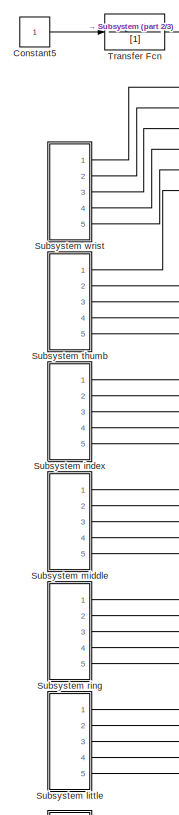
[diagram: root canvas - part 1/3, top left region]
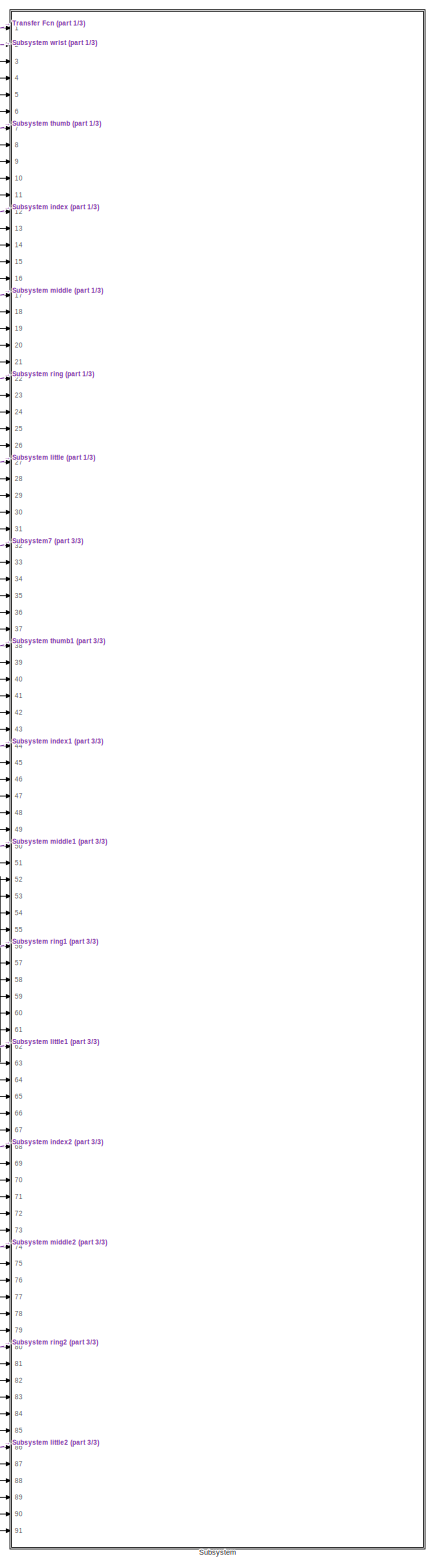
[diagram: root canvas - part 2/3, right side, full height]
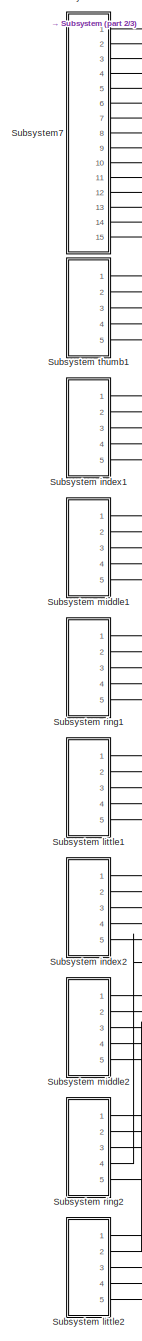
[diagram: root canvas - part 3/3, bottom left region]
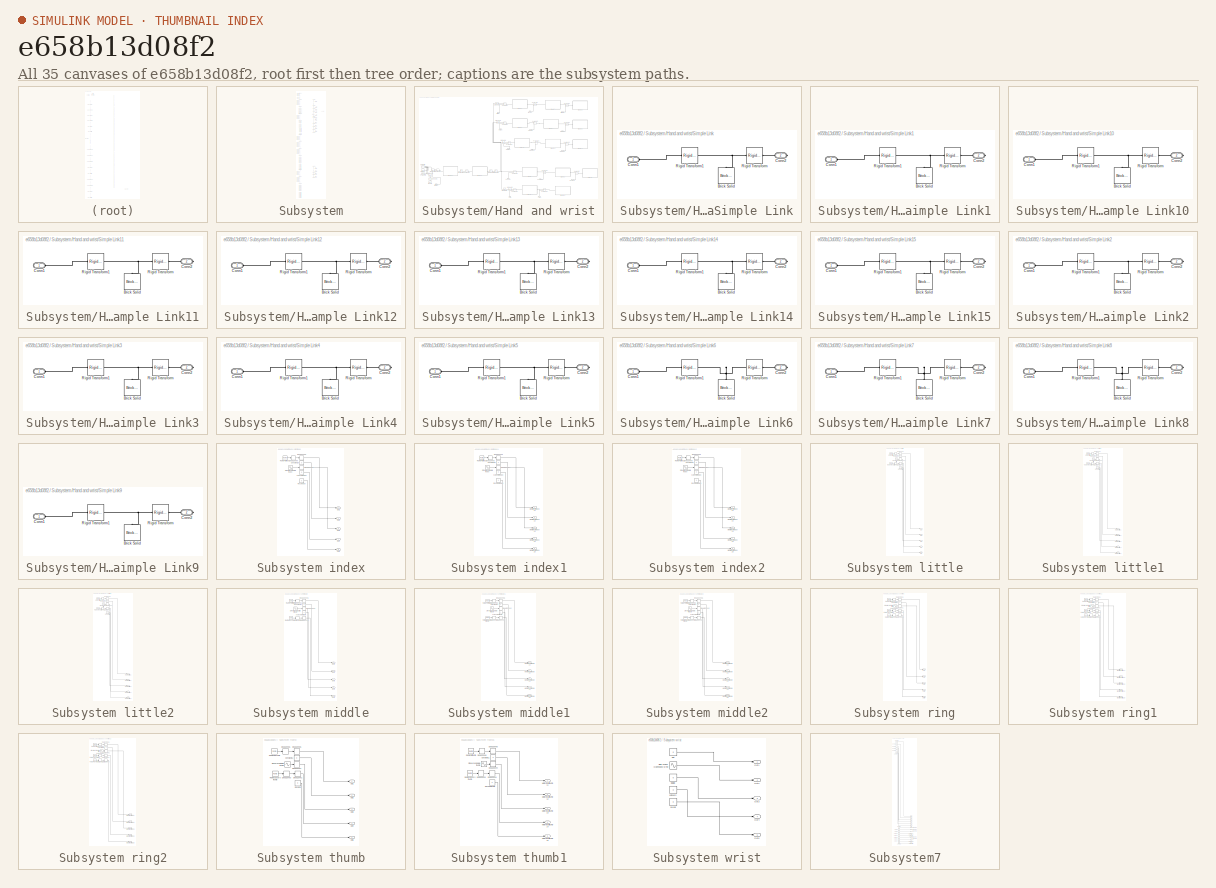
[diagram: thumbnail index - all 35 canvases of the model, root first then tree order]
MODEL slx_e658b13d08f2
KIND model
CONFIG AbsTol = 1e-3
CONFIG EnableMultiTasking = on
CONFIG FixedStep = auto
CONFIG MaxStep = auto
CONFIG MinStep = auto
CONFIG RelTol = 1e-3
CONFIG SampleTimeConstraint = Unconstrained
CONFIG SolverName = VariableStepAuto
CONFIG StartTime = 0.0
CONFIG StopTime = 10.0
BLOCK [Constant] Constant5
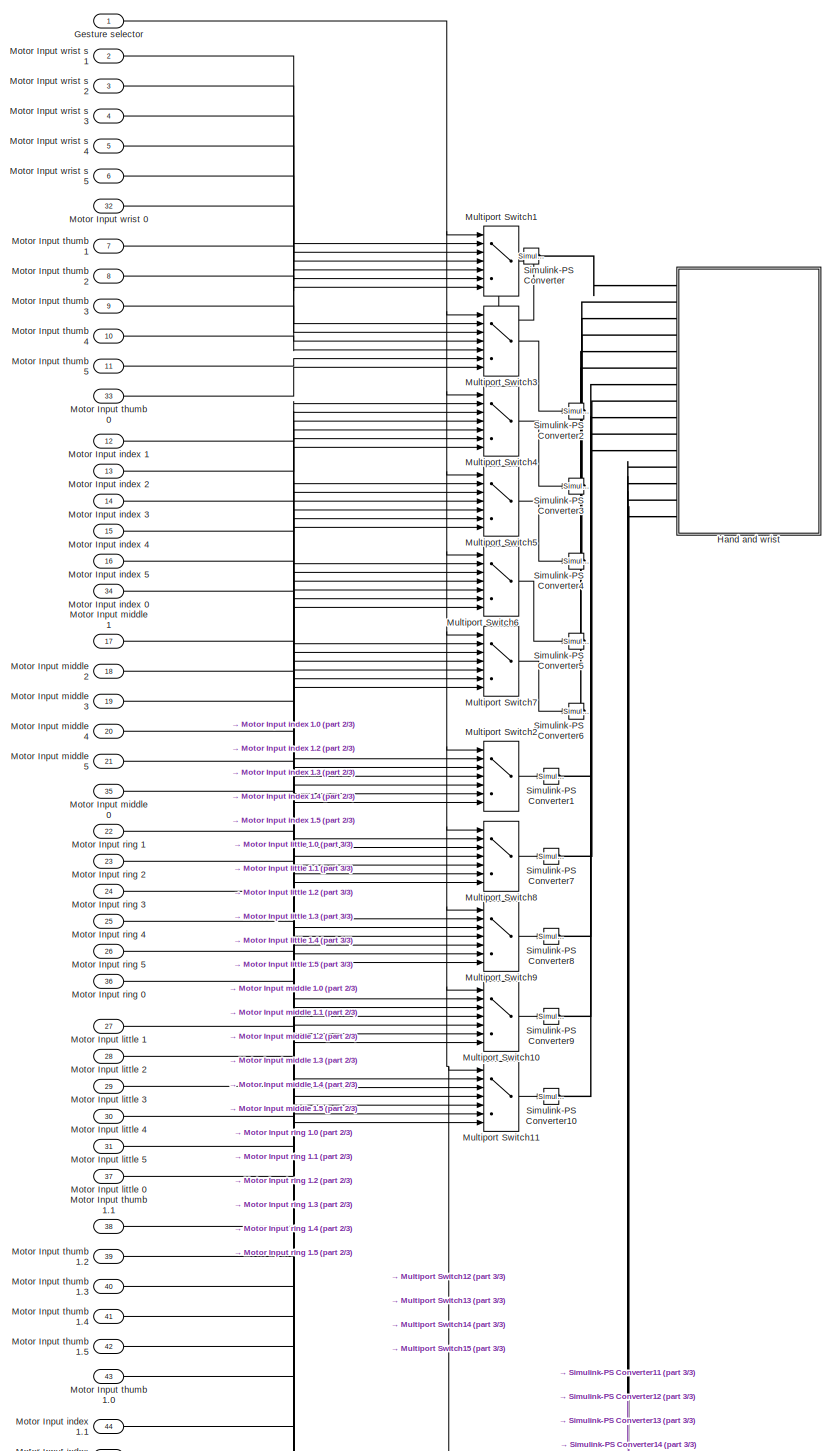
[diagram: Subsystem - part 1/3, full width, top band]
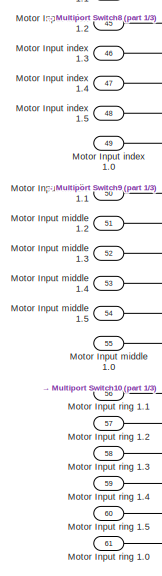
[diagram: Subsystem - part 2/3, middle left region]
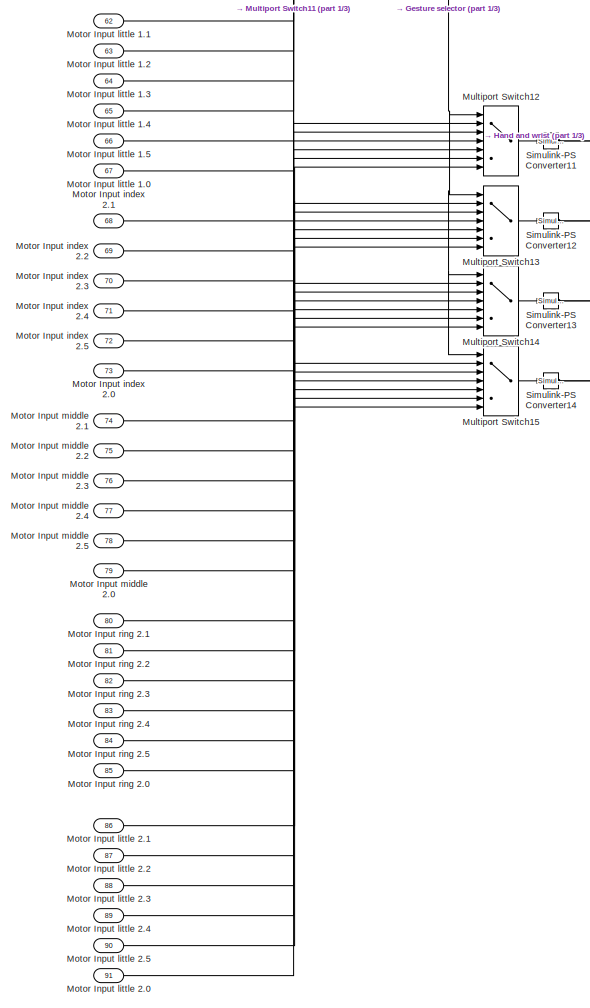
[diagram: Subsystem - part 3/3, bottom center region]
BLOCK [SubSystem] Subsystem
  Ports = [91]
  RequestExecContextInheritance = off
BLOCK [SubSystem] Subsystem index
  Ports = [0, 5]
  RequestExecContextInheritance = off
BLOCK [Constant] Subsystem index/ Rock index
  Value = 0
BLOCK [Constant] Subsystem index/ scissors index
  Value = 0
BLOCK [Constant] Subsystem index/Constant16
  Value = 0
BLOCK [DeadZone] Subsystem index/Dead Zone3
  LowerValue = -10
  UpperValue = 0
BLOCK [DeadZone] Subsystem index/Dead Zone5
  LowerValue = -100
  UpperValue = -1.5
BLOCK [DeadZone] Subsystem index/Dead Zone6
  LowerValue = 1.5
  UpperValue = 100
BLOCK [Outport] Subsystem index/Out1
BLOCK [Outport] Subsystem index/Out2
  Port = 2
BLOCK [Outport] Subsystem index/Out3
  Port = 3
BLOCK [Outport] Subsystem index/Out4
  Port = 4
BLOCK [Outport] Subsystem index/Out5
  Port = 5
BLOCK [Reference] Subsystem index/Ramp Fist index  REF=simulink/Sources/Ramp
  Ports = [0, 1]
  SourceBlock = simulink/Sources/Ramp
  SourceProductBaseCode = SL
  SourceType = Ramp
BLOCK [Sin] Subsystem index/Sine Wave Balala index
  Amplitude = 0.5
  Frequency = 3
  Phase = 3*pi/5
  Ports = [0, 1]
  SampleTime = 0
BLOCK [SubSystem] Subsystem index1
  Ports = [0, 5]
  RequestExecContextInheritance = off
BLOCK [Constant] Subsystem index1/ Rocking index
  Value = 0
BLOCK [Constant] Subsystem index1/ scissors index
  Value = 0
BLOCK [Constant] Subsystem index1/Constant16
  Value = 0
BLOCK [DeadZone] Subsystem index1/Dead Zone3
  LowerValue = -10
  UpperValue = 0
BLOCK [DeadZone] Subsystem index1/Dead Zone5
  LowerValue = -100
  UpperValue = -1.5
BLOCK [DeadZone] Subsystem index1/Dead Zone6
  LowerValue = 1.5
  UpperValue = 100
BLOCK [Outport] Subsystem index1/Motor Input index 1.1
BLOCK [Outport] Subsystem index1/Motor Input index 1.2
  Port = 2
BLOCK [Outport] Subsystem index1/Motor Input index 1.3
  Port = 3
BLOCK [Outport] Subsystem index1/Motor Input index 1.4
  Port = 4
BLOCK [Outport] Subsystem index1/Motor Input index 1.5
  Port = 5
BLOCK [Reference] Subsystem index1/Ramp Fist index  REF=simulink/Sources/Ramp
  Ports = [0, 1]
  SourceBlock = simulink/Sources/Ramp
  SourceProductBaseCode = SL
  SourceType = Ramp
BLOCK [Sin] Subsystem index1/Sine Wave Balala index
  Amplitude = 0.5
  Frequency = 3
  Phase = 3*pi/5
  Ports = [0, 1]
  SampleTime = 0
BLOCK [SubSystem] Subsystem index2
  Ports = [0, 5]
  RequestExecContextInheritance = off
BLOCK [Constant] Subsystem index2/ Rocking index
  Value = 0
BLOCK [Constant] Subsystem index2/ scissors index
  Value = 0
BLOCK [Constant] Subsystem index2/Constant16
  Value = 0
BLOCK [DeadZone] Subsystem index2/Dead Zone3
  LowerValue = -10
  UpperValue = 0
BLOCK [DeadZone] Subsystem index2/Dead Zone5
  LowerValue = -100
  UpperValue = -1.5
BLOCK [DeadZone] Subsystem index2/Dead Zone6
  LowerValue = 1.5
  UpperValue = 100
BLOCK [Outport] Subsystem index2/Motor Input index 2.1
BLOCK [Outport] Subsystem index2/Motor Input index 2.2
  Port = 2
BLOCK [Outport] Subsystem index2/Motor Input index 2.3
  Port = 3
BLOCK [Outport] Subsystem index2/Motor Input index 2.4
  Port = 4
BLOCK [Outport] Subsystem index2/Motor Input index 2.5
  Port = 5
BLOCK [Reference] Subsystem index2/Ramp Fist index  REF=simulink/Sources/Ramp
  Ports = [0, 1]
  SourceBlock = simulink/Sources/Ramp
  SourceProductBaseCode = SL
  SourceType = Ramp
BLOCK [Sin] Subsystem index2/Sine Wave Balala index
  Amplitude = 0.5
  Frequency = 3
  Phase = 3*pi/5
  Ports = [0, 1]
  SampleTime = 0
BLOCK [SubSystem] Subsystem little
  Ports = [0, 5]
  RequestExecContextInheritance = off
BLOCK [Constant] Subsystem little/Constant31
  Value = 0
BLOCK [DeadZone] Subsystem little/Dead Zone2
  LowerValue = -100
  UpperValue = -1.5
BLOCK [DeadZone] Subsystem little/Dead Zone3
  LowerValue = 1.5
  UpperValue = 100
BLOCK [DeadZone] Subsystem little/Dead Zone5
  LowerValue = -100
  UpperValue = -1.5
BLOCK [DeadZone] Subsystem little/Dead Zone6
  LowerValue = 1.5
  UpperValue = 100
BLOCK [DeadZone] Subsystem little/Dead Zone7
  LowerValue = -10
  UpperValue = 0
BLOCK [Outport] Subsystem little/Out1
BLOCK [Outport] Subsystem little/Out2
  Port = 2
BLOCK [Outport] Subsystem little/Out3
  Port = 3
BLOCK [Outport] Subsystem little/Out4
  Port = 4
BLOCK [Outport] Subsystem little/Out5
  Port = 5
BLOCK [Reference] Subsystem little/Ramp Fist little  REF=simulink/Sources/Ramp
  Ports = [0, 1]
  SourceBlock = simulink/Sources/Ramp
  SourceProductBaseCode = SL
  SourceType = Ramp
BLOCK [Reference] Subsystem little/Ramp scissors little  REF=simulink/Sources/Ramp
  Ports = [0, 1]
  SourceBlock = simulink/Sources/Ramp
  SourceProductBaseCode = SL
  SourceType = Ramp
BLOCK [Constant] Subsystem little/Rocking little
  Value = 0
BLOCK [Sin] Subsystem little/Sine Wave Balala little
  Amplitude = 0.5
  Frequency = 3
  Ports = [0, 1]
  SampleTime = 0
BLOCK [SubSystem] Subsystem little1
  Ports = [0, 5]
  RequestExecContextInheritance = off
BLOCK [Constant] Subsystem little1/Constant31
  Value = 0
BLOCK [DeadZone] Subsystem little1/Dead Zone2
  LowerValue = -100
  UpperValue = -1.5
BLOCK [DeadZone] Subsystem little1/Dead Zone3
  LowerValue = 1.5
  UpperValue = 100
BLOCK [DeadZone] Subsystem little1/Dead Zone5
  LowerValue = -100
  UpperValue = -1.5
BLOCK [DeadZone] Subsystem little1/Dead Zone6
  LowerValue = 1.5
  UpperValue = 100
BLOCK [DeadZone] Subsystem little1/Dead Zone7
  LowerValue = -10
  UpperValue = 0
BLOCK [Outport] Subsystem little1/Motor Input little 1.1
BLOCK [Outport] Subsystem little1/Motor Input little 1.2
  Port = 2
BLOCK [Outport] Subsystem little1/Motor Input little 1.3
  Port = 3
BLOCK [Outport] Subsystem little1/Motor Input little 1.4
  Port = 4
BLOCK [Outport] Subsystem little1/Motor Input little 1.5
  Port = 5
BLOCK [Reference] Subsystem little1/Ramp Fist little  REF=simulink/Sources/Ramp
  Ports = [0, 1]
  SourceBlock = simulink/Sources/Ramp
  SourceProductBaseCode = SL
  SourceType = Ramp
BLOCK [Reference] Subsystem little1/Ramp scissors little  REF=simulink/Sources/Ramp
  Ports = [0, 1]
  SourceBlock = simulink/Sources/Ramp
  SourceProductBaseCode = SL
  SourceType = Ramp
BLOCK [Constant] Subsystem little1/Rocking little
  Value = 0
BLOCK [Sin] Subsystem little1/Sine Wave Balala little
  Amplitude = 0.5
  Frequency = 3
  Ports = [0, 1]
  SampleTime = 0
BLOCK [SubSystem] Subsystem little2
  Ports = [0, 5]
  RequestExecContextInheritance = off
BLOCK [Constant] Subsystem little2/Constant31
  Value = 0
BLOCK [DeadZone] Subsystem little2/Dead Zone2
  LowerValue = -100
  UpperValue = -1.5
BLOCK [DeadZone] Subsystem little2/Dead Zone3
  LowerValue = 1.5
  UpperValue = 100
BLOCK [DeadZone] Subsystem little2/Dead Zone5
  LowerValue = -100
  UpperValue = -1.5
BLOCK [DeadZone] Subsystem little2/Dead Zone6
  LowerValue = 1.5
  UpperValue = 100
BLOCK [DeadZone] Subsystem little2/Dead Zone7
  LowerValue = -10
  UpperValue = 0
BLOCK [Outport] Subsystem little2/Motor Input little 2.1
BLOCK [Outport] Subsystem little2/Motor Input little 2.2
  Port = 2
BLOCK [Outport] Subsystem little2/Motor Input little 2.3
  Port = 3
BLOCK [Outport] Subsystem little2/Motor Input little 2.4
  Port = 4
BLOCK [Outport] Subsystem little2/Motor Input little 2.5
  Port = 5
BLOCK [Reference] Subsystem little2/Ramp Fist little  REF=simulink/Sources/Ramp
  Ports = [0, 1]
  SourceBlock = simulink/Sources/Ramp
  SourceProductBaseCode = SL
  SourceType = Ramp
BLOCK [Reference] Subsystem little2/Ramp Scissors little  REF=simulink/Sources/Ramp
  Ports = [0, 1]
  SourceBlock = simulink/Sources/Ramp
  SourceProductBaseCode = SL
  SourceType = Ramp
BLOCK [Constant] Subsystem little2/Rocking little
  Value = 0
BLOCK [Sin] Subsystem little2/Sine Wave Balala little
  Amplitude = 0.5
  Frequency = 3
  Ports = [0, 1]
  SampleTime = 0
BLOCK [SubSystem] Subsystem middle
  Ports = [0, 5]
  RequestExecContextInheritance = off
BLOCK [Constant] Subsystem middle/Constant21
  Value = 0
BLOCK [DeadZone] Subsystem middle/Dead Zone1
  LowerValue = -100
  UpperValue = -1.5
BLOCK [DeadZone] Subsystem middle/Dead Zone2
  LowerValue = -10
  UpperValue = 0
BLOCK [DeadZone] Subsystem middle/Dead Zone3
  LowerValue = 1.5
  UpperValue = 100
BLOCK [DeadZone] Subsystem middle/Dead Zone5
  LowerValue = -100
  UpperValue = -1.5
BLOCK [DeadZone] Subsystem middle/Dead Zone6
  LowerValue = 1.5
  UpperValue = 100
BLOCK [Outport] Subsystem middle/Out1
BLOCK [Outport] Subsystem middle/Out2
  Port = 2
BLOCK [Outport] Subsystem middle/Out3
  Port = 3
BLOCK [Outport] Subsystem middle/Out4
  Port = 4
BLOCK [Outport] Subsystem middle/Out5
  Port = 5
BLOCK [Reference] Subsystem middle/Ramp Fist middle  REF=simulink/Sources/Ramp
  Ports = [0, 1]
  SourceBlock = simulink/Sources/Ramp
  SourceProductBaseCode = SL
  SourceType = Ramp
BLOCK [Reference] Subsystem middle/Ramp Rock middle  REF=simulink/Sources/Ramp
  Ports = [0, 1]
  SourceBlock = simulink/Sources/Ramp
  SourceProductBaseCode = SL
  SourceType = Ramp
BLOCK [Sin] Subsystem middle/Sine Wave Balala middle
  Amplitude = 0.5
  Frequency = 3
  Phase = 2*pi/5
  Ports = [0, 1]
  SampleTime = 0
BLOCK [Constant] Subsystem middle/scissors Middle
  Value = 0
BLOCK [SubSystem] Subsystem middle1
  Ports = [0, 5]
  RequestExecContextInheritance = off
BLOCK [Constant] Subsystem middle1/Constant21
  Value = 0
BLOCK [DeadZone] Subsystem middle1/Dead Zone1
  LowerValue = -100
  UpperValue = -1.5
BLOCK [DeadZone] Subsystem middle1/Dead Zone2
  LowerValue = -10
  UpperValue = 0
BLOCK [DeadZone] Subsystem middle1/Dead Zone3
  LowerValue = 1.5
  UpperValue = 100
BLOCK [DeadZone] Subsystem middle1/Dead Zone5
  LowerValue = -100
  UpperValue = -1.5
BLOCK [DeadZone] Subsystem middle1/Dead Zone6
  LowerValue = 1.5
  UpperValue = 100
BLOCK [Outport] Subsystem middle1/Motor Input middle 1.1
BLOCK [Outport] Subsystem middle1/Motor Input middle 1.2
  Port = 2
BLOCK [Outport] Subsystem middle1/Motor Input middle 1.3
  Port = 3
BLOCK [Outport] Subsystem middle1/Motor Input middle 1.4
  Port = 4
BLOCK [Outport] Subsystem middle1/Motor Input middle 1.5
  Port = 5
BLOCK [Reference] Subsystem middle1/Ramp Fist middle  REF=simulink/Sources/Ramp
  Ports = [0, 1]
  SourceBlock = simulink/Sources/Ramp
  SourceProductBaseCode = SL
  SourceType = Ramp
BLOCK [Reference] Subsystem middle1/Ramp Rocking middle  REF=simulink/Sources/Ramp
  Ports = [0, 1]
  SourceBlock = simulink/Sources/Ramp
  SourceProductBaseCode = SL
  SourceType = Ramp
BLOCK [Sin] Subsystem middle1/Sine Wave Balala middle
  Amplitude = 0.5
  Frequency = 3
  Phase = 2*pi/5
  Ports = [0, 1]
  SampleTime = 0
BLOCK [Constant] Subsystem middle1/scissors Middle
  Value = 0
BLOCK [SubSystem] Subsystem middle2
  Ports = [0, 5]
  RequestExecContextInheritance = off
BLOCK [Constant] Subsystem middle2/Constant21
  Value = 0
BLOCK [DeadZone] Subsystem middle2/Dead Zone1
  LowerValue = -100
  UpperValue = -1.5
BLOCK [DeadZone] Subsystem middle2/Dead Zone2
  LowerValue = -10
  UpperValue = 0
BLOCK [DeadZone] Subsystem middle2/Dead Zone3
  LowerValue = 1.5
  UpperValue = 100
BLOCK [DeadZone] Subsystem middle2/Dead Zone5
  LowerValue = -100
  UpperValue = -1.5
BLOCK [DeadZone] Subsystem middle2/Dead Zone6
  LowerValue = 1.5
  UpperValue = 100
BLOCK [Outport] Subsystem middle2/Motor Input middle 2.1
BLOCK [Outport] Subsystem middle2/Motor Input middle 2.2
  Port = 2
BLOCK [Outport] Subsystem middle2/Motor Input middle 2.3
  Port = 3
BLOCK [Outport] Subsystem middle2/Motor Input middle 2.4
  Port = 4
BLOCK [Outport] Subsystem middle2/Motor Input middle 2.5
  Port = 5
BLOCK [Reference] Subsystem middle2/Ramp Fist middle  REF=simulink/Sources/Ramp
  Ports = [0, 1]
  SourceBlock = simulink/Sources/Ramp
  SourceProductBaseCode = SL
  SourceType = Ramp
BLOCK [Reference] Subsystem middle2/Ramp Rocking middle  REF=simulink/Sources/Ramp
  Ports = [0, 1]
  SourceBlock = simulink/Sources/Ramp
  SourceProductBaseCode = SL
  SourceType = Ramp
BLOCK [Sin] Subsystem middle2/Sine Wave Balala middle
  Amplitude = 0.5
  Frequency = 3
  Phase = 2*pi/5
  Ports = [0, 1]
  SampleTime = 0
BLOCK [Constant] Subsystem middle2/scissors Middle
  Value = 0
BLOCK [SubSystem] Subsystem ring
  Ports = [0, 5]
  RequestExecContextInheritance = off
BLOCK [Constant] Subsystem ring/Constant26
  Value = 0
BLOCK [DeadZone] Subsystem ring/Dead Zone1
  LowerValue = -10
  UpperValue = 0
BLOCK [DeadZone] Subsystem ring/Dead Zone2
  LowerValue = -100
  UpperValue = -1.5
BLOCK [DeadZone] Subsystem ring/Dead Zone3
  LowerValue = -100
  UpperValue = -1.5
BLOCK [DeadZone] Subsystem ring/Dead Zone4
  LowerValue = 1.5
  UpperValue = 100
BLOCK [DeadZone] Subsystem ring/Dead Zone5
  LowerValue = -100
  UpperValue = -1.5
BLOCK [DeadZone] Subsystem ring/Dead Zone6
  LowerValue = 1.5
  UpperValue = 100
BLOCK [DeadZone] Subsystem ring/Dead Zone7
  LowerValue = 1.5
  UpperValue = 100
BLOCK [Outport] Subsystem ring/Out1
BLOCK [Outport] Subsystem ring/Out2
  Port = 2
BLOCK [Outport] Subsystem ring/Out3
  Port = 3
BLOCK [Outport] Subsystem ring/Out4
  Port = 4
BLOCK [Outport] Subsystem ring/Out5
  Port = 5
BLOCK [Reference] Subsystem ring/Ramp Fist ring  REF=simulink/Sources/Ramp
  Ports = [0, 1]
  SourceBlock = simulink/Sources/Ramp
  SourceProductBaseCode = SL
  SourceType = Ramp
BLOCK [Reference] Subsystem ring/Ramp rock ring  REF=simulink/Sources/Ramp
  Ports = [0, 1]
  SourceBlock = simulink/Sources/Ramp
  SourceProductBaseCode = SL
  SourceType = Ramp
BLOCK [Reference] Subsystem ring/Ramp scissors ring  REF=simulink/Sources/Ramp
  Ports = [0, 1]
  SourceBlock = simulink/Sources/Ramp
  SourceProductBaseCode = SL
  SourceType = Ramp
BLOCK [Sin] Subsystem ring/Sine Wave Balala ring
  Amplitude = 0.5
  Frequency = 3
  Phase = pi/5
  Ports = [0, 1]
  SampleTime = 0
BLOCK [SubSystem] Subsystem ring1
  Ports = [0, 5]
  RequestExecContextInheritance = off
BLOCK [Constant] Subsystem ring1/Constant26
  Value = 0
BLOCK [DeadZone] Subsystem ring1/Dead Zone1
  LowerValue = -10
  UpperValue = 0
BLOCK [DeadZone] Subsystem ring1/Dead Zone2
  LowerValue = -100
  UpperValue = -1.5
BLOCK [DeadZone] Subsystem ring1/Dead Zone3
  LowerValue = -100
  UpperValue = -1.5
BLOCK [DeadZone] Subsystem ring1/Dead Zone4
  LowerValue = 1.5
  UpperValue = 100
BLOCK [DeadZone] Subsystem ring1/Dead Zone5
  LowerValue = -100
  UpperValue = -1.5
BLOCK [DeadZone] Subsystem ring1/Dead Zone6
  LowerValue = 1.5
  UpperValue = 100
BLOCK [DeadZone] Subsystem ring1/Dead Zone7
  LowerValue = 1.5
  UpperValue = 100
BLOCK [Outport] Subsystem ring1/Motor Input ring 1.1
BLOCK [Outport] Subsystem ring1/Motor Input ring 1.2
  Port = 2
BLOCK [Outport] Subsystem ring1/Motor Input ring 1.3
  Port = 3
BLOCK [Outport] Subsystem ring1/Motor Input ring 1.4
  Port = 4
BLOCK [Outport] Subsystem ring1/Motor Input ring 1.5
  Port = 5
BLOCK [Reference] Subsystem ring1/Ramp Fist ring  REF=simulink/Sources/Ramp
  Ports = [0, 1]
  SourceBlock = simulink/Sources/Ramp
  SourceProductBaseCode = SL
  SourceType = Ramp
BLOCK [Reference] Subsystem ring1/Ramp Rocking ring  REF=simulink/Sources/Ramp
  Ports = [0, 1]
  SourceBlock = simulink/Sources/Ramp
  SourceProductBaseCode = SL
  SourceType = Ramp
BLOCK [Reference] Subsystem ring1/Ramp scissors ring  REF=simulink/Sources/Ramp
  Ports = [0, 1]
  SourceBlock = simulink/Sources/Ramp
  SourceProductBaseCode = SL
  SourceType = Ramp
BLOCK [Sin] Subsystem ring1/Sine Wave Balala ring
  Amplitude = 0.5
  Frequency = 3
  Phase = pi/5
  Ports = [0, 1]
  SampleTime = 0
BLOCK [SubSystem] Subsystem ring2
  Ports = [0, 5]
  RequestExecContextInheritance = off
BLOCK [Constant] Subsystem ring2/Constant26
  Value = 0
BLOCK [DeadZone] Subsystem ring2/Dead Zone1
  LowerValue = -10
  UpperValue = 0
BLOCK [DeadZone] Subsystem ring2/Dead Zone2
  LowerValue = -100
  UpperValue = -1.5
BLOCK [DeadZone] Subsystem ring2/Dead Zone3
  LowerValue = -100
  UpperValue = -1.5
BLOCK [DeadZone] Subsystem ring2/Dead Zone4
  LowerValue = 1.5
  UpperValue = 100
BLOCK [DeadZone] Subsystem ring2/Dead Zone5
  LowerValue = -100
  UpperValue = -1.5
BLOCK [DeadZone] Subsystem ring2/Dead Zone6
  LowerValue = 1.5
  UpperValue = 100
BLOCK [DeadZone] Subsystem ring2/Dead Zone7
  LowerValue = 1.5
  UpperValue = 100
BLOCK [Outport] Subsystem ring2/Motor Input ring 2.1
BLOCK [Outport] Subsystem ring2/Motor Input ring 2.2
  Port = 2
BLOCK [Outport] Subsystem ring2/Motor Input ring 2.3
  Port = 3
BLOCK [Outport] Subsystem ring2/Motor Input ring 2.4
  Port = 4
BLOCK [Outport] Subsystem ring2/Motor Input ring 2.5
  Port = 5
BLOCK [Reference] Subsystem ring2/Ramp Fist ring  REF=simulink/Sources/Ramp
  Ports = [0, 1]
  SourceBlock = simulink/Sources/Ramp
  SourceProductBaseCode = SL
  SourceType = Ramp
BLOCK [Reference] Subsystem ring2/Ramp Rocking ring  REF=simulink/Sources/Ramp
  Ports = [0, 1]
  SourceBlock = simulink/Sources/Ramp
  SourceProductBaseCode = SL
  SourceType = Ramp
BLOCK [Reference] Subsystem ring2/Ramp scissors ring  REF=simulink/Sources/Ramp
  Ports = [0, 1]
  SourceBlock = simulink/Sources/Ramp
  SourceProductBaseCode = SL
  SourceType = Ramp
BLOCK [Sin] Subsystem ring2/Sine Wave Balala ring
  Amplitude = 0.5
  Frequency = 3
  Phase = pi/5
  Ports = [0, 1]
  SampleTime = 0
BLOCK [SubSystem] Subsystem thumb
  Ports = [0, 5]
  RequestExecContextInheritance = off
BLOCK [Constant] Subsystem thumb/Constant11
  Value = 0
BLOCK [DeadZone] Subsystem thumb/Dead Zone1
  LowerValue = -100
  UpperValue = -1.5
BLOCK [DeadZone] Subsystem thumb/Dead Zone3
  LowerValue = 1.5
  UpperValue = 100
BLOCK [DeadZone] Subsystem thumb/Dead Zone4
  LowerValue = -10
  UpperValue = 0
BLOCK [DeadZone] Subsystem thumb/Dead Zone5
  LowerValue = -100
  UpperValue = -1.5
BLOCK [DeadZone] Subsystem thumb/Dead Zone6
  LowerValue = 1.5
  UpperValue = 100
BLOCK [Outport] Subsystem thumb/Out1
BLOCK [Outport] Subsystem thumb/Out2
  Port = 2
BLOCK [Outport] Subsystem thumb/Out3
  Port = 3
BLOCK [Outport] Subsystem thumb/Out4
  Port = 4
BLOCK [Outport] Subsystem thumb/Out5
  Port = 5
BLOCK [Reference] Subsystem thumb/Ramp Fist Thumb  REF=simulink/Sources/Ramp
  Ports = [0, 1]
  SourceBlock = simulink/Sources/Ramp
  SourceProductBaseCode = SL
  SourceType = Ramp
BLOCK [Reference] Subsystem thumb/Ramp scissors thumb  REF=simulink/Sources/Ramp
  Ports = [0, 1]
  SourceBlock = simulink/Sources/Ramp
  SourceProductBaseCode = SL
  SourceType = Ramp
BLOCK [Constant] Subsystem thumb/Rocking
  Value = 0
BLOCK [Sin] Subsystem thumb/Sine Wave Balala thumb
  Amplitude = 0.5
  Frequency = 3
  Phase = 4*pi/5
  Ports = [0, 1]
  SampleTime = 0
BLOCK [SubSystem] Subsystem thumb1
  Ports = [0, 5]
  RequestExecContextInheritance = off
BLOCK [Constant] Subsystem thumb1/Constant11
  Value = 0
BLOCK [DeadZone] Subsystem thumb1/Dead Zone1
  LowerValue = -100
  UpperValue = -1.5
BLOCK [DeadZone] Subsystem thumb1/Dead Zone3
  LowerValue = 1.5
  UpperValue = 100
BLOCK [DeadZone] Subsystem thumb1/Dead Zone4
  LowerValue = -10
  UpperValue = 0
BLOCK [DeadZone] Subsystem thumb1/Dead Zone5
  LowerValue = -100
  UpperValue = -1.5
BLOCK [DeadZone] Subsystem thumb1/Dead Zone6
  LowerValue = 1.5
  UpperValue = 100
BLOCK [Outport] Subsystem thumb1/Motor Input thumb 1.1
BLOCK [Outport] Subsystem thumb1/Motor Input thumb 1.2
  Port = 2
BLOCK [Outport] Subsystem thumb1/Motor Input thumb 1.3
  Port = 3
BLOCK [Outport] Subsystem thumb1/Motor Input thumb 1.4
  Port = 4
BLOCK [Outport] Subsystem thumb1/Motor Input thumb 1.5
  Port = 5
BLOCK [Reference] Subsystem thumb1/Ramp Fist thumb  REF=simulink/Sources/Ramp
  Ports = [0, 1]
  SourceBlock = simulink/Sources/Ramp
  SourceProductBaseCode = SL
  SourceType = Ramp
BLOCK [Reference] Subsystem thumb1/Ramp scissors thumb  REF=simulink/Sources/Ramp
  Ports = [0, 1]
  SourceBlock = simulink/Sources/Ramp
  SourceProductBaseCode = SL
  SourceType = Ramp
BLOCK [Constant] Subsystem thumb1/Rocking thumb
  Value = 0
BLOCK [Sin] Subsystem thumb1/Sine Wave Balala thumb
  Amplitude = 0.5
  Frequency = 3
  Phase = 4*pi/5
  Ports = [0, 1]
  SampleTime = 0
BLOCK [SubSystem] Subsystem wrist
  Ports = [0, 5]
  RequestExecContextInheritance = off
BLOCK [Constant] Subsystem wrist/Balala
  Value = 0
BLOCK [Constant] Subsystem wrist/Fist
  Value = 0
BLOCK [Outport] Subsystem wrist/Out1
BLOCK [Outport] Subsystem wrist/Out2
  Port = 2
BLOCK [Outport] Subsystem wrist/Out3
  Port = 3
BLOCK [Outport] Subsystem wrist/Out4
  Port = 4
BLOCK [Outport] Subsystem wrist/Out5
  Port = 5
BLOCK [Sin] Subsystem wrist/Sine Wave Openhand wrist
  Amplitude = 0.5
  Frequency = 3
  Ports = [0, 1]
  SampleTime = 0
BLOCK [Constant] Subsystem wrist/scissors
  Value = 0
BLOCK [Constant] Subsystem wrist/swear
  Value = 0
BLOCK [Inport] Subsystem/Gesture selector
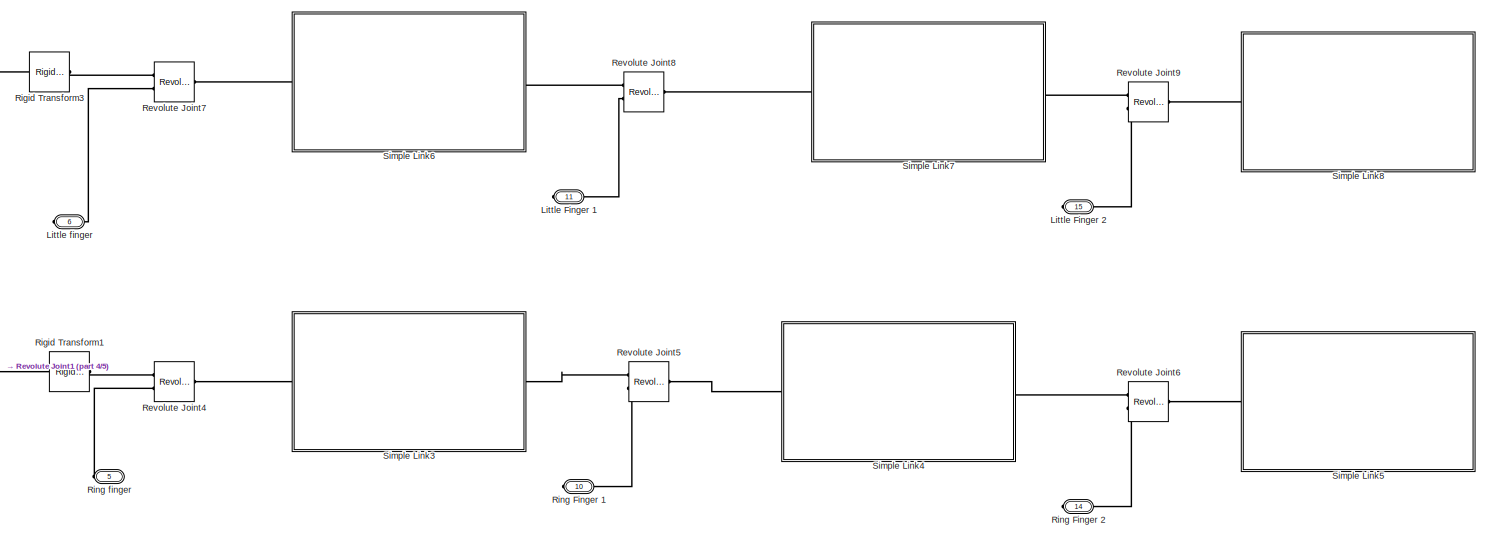
[diagram: Subsystem/Hand and wrist - part 1/5, top right region]
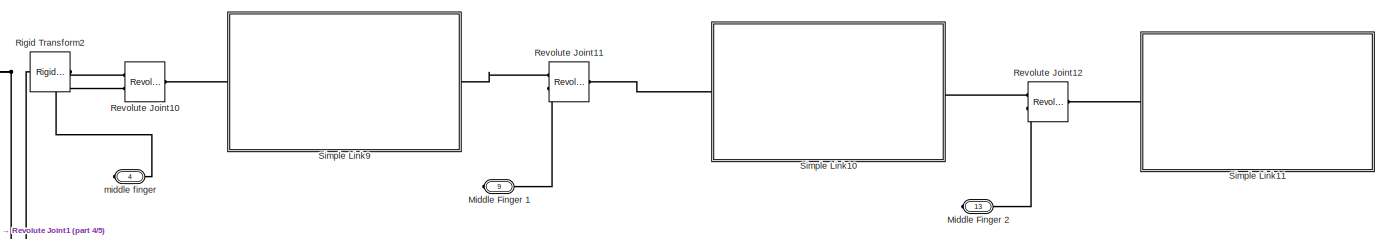
[diagram: Subsystem/Hand and wrist - part 2/5, middle right region]
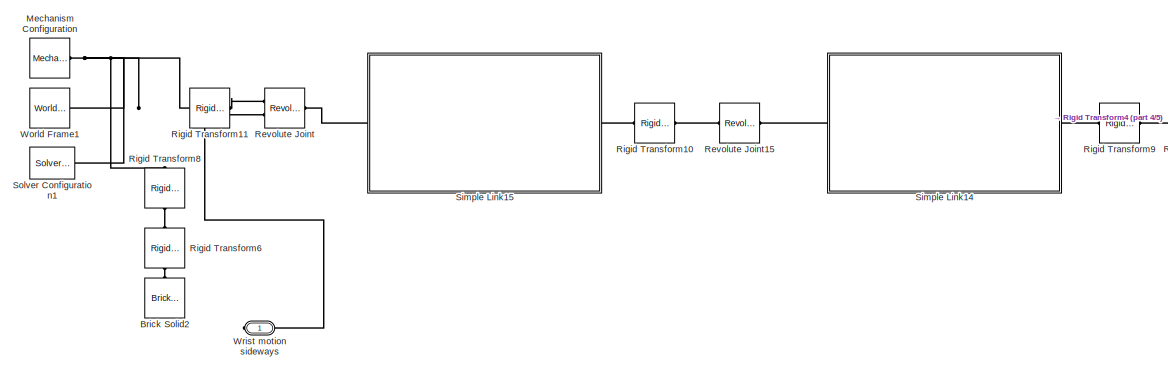
[diagram: Subsystem/Hand and wrist - part 3/5, bottom left region]
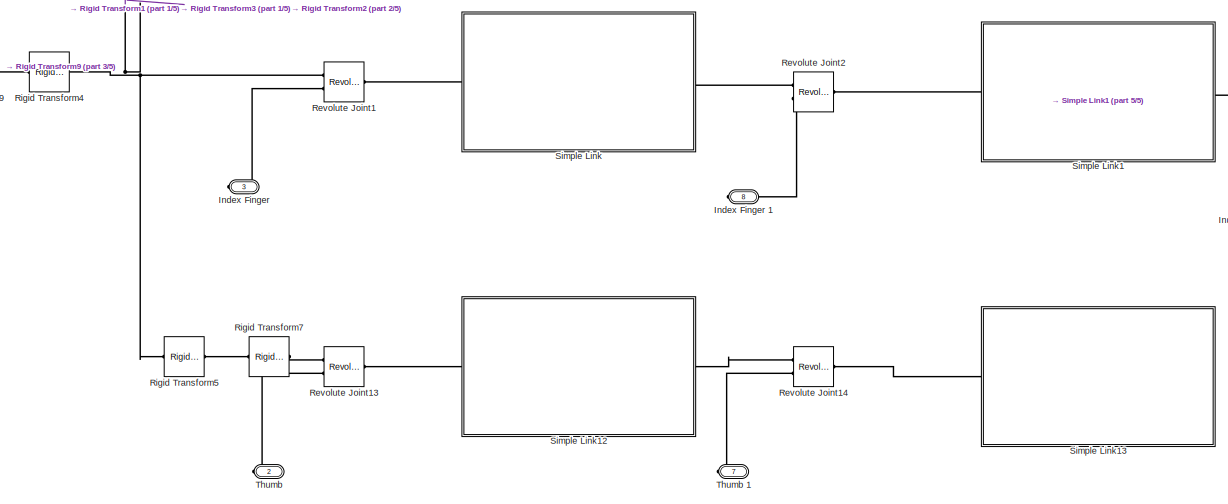
[diagram: Subsystem/Hand and wrist - part 4/5, bottom center region]
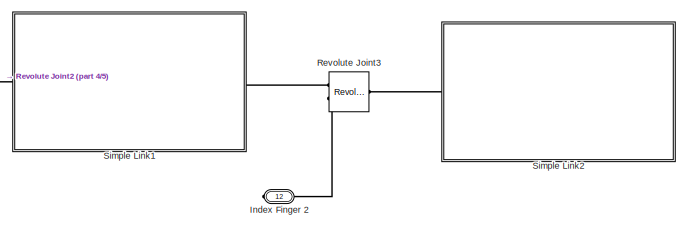
[diagram: Subsystem/Hand and wrist - part 5/5, bottom right region]
BLOCK [SubSystem] Subsystem/Hand and wrist
  NameLocation = top
  Ports = [0, 0, 0, 0, 0, 0, 15]
  RequestExecContextInheritance = off
BLOCK [Reference] Subsystem/Hand and wrist/Brick Solid2  REF=sm_lib/Body Elements/Brick Solid
  NameLocation = right
  Ports = [0, 0, 0, 0, 0, 0, 1]
  SourceBlock = sm_lib/Body Elements/Brick Solid
  SourceProductBaseCode = MS
  SourceType = Brick Solid
BLOCK [PMIOPort] Subsystem/Hand and wrist/Index Finger
  NameLocation = top
  Port = 3
  Side = Right
BLOCK [PMIOPort] Subsystem/Hand and wrist/Index Finger 1
  NameLocation = top
  Port = 8
  Side = Right
BLOCK [PMIOPort] Subsystem/Hand and wrist/Index Finger 2
  NameLocation = top
  Port = 12
  Side = Right
BLOCK [PMIOPort] Subsystem/Hand and wrist/Little Finger 1
  NameLocation = top
  Port = 11
  Side = Right
BLOCK [PMIOPort] Subsystem/Hand and wrist/Little Finger 2
  NameLocation = top
  Port = 15
  Side = Right
BLOCK [PMIOPort] Subsystem/Hand and wrist/Little finger
  NameLocation = top
  Port = 6
  Side = Right
BLOCK [Reference] Subsystem/Hand and wrist/Mechanism Configuration  REF=sm_lib/Utilities/Mechanism
Configuration
  Ports = [0, 0, 0, 0, 0, 0, 1]
  SourceBlock = sm_lib/Utilities/Mechanism\nConfiguration
  SourceProductBaseCode = MS
  SourceType = Mechanism\nConfiguration
BLOCK [PMIOPort] Subsystem/Hand and wrist/Middle Finger 1
  NameLocation = top
  Port = 9
  Side = Right
BLOCK [PMIOPort] Subsystem/Hand and wrist/Middle Finger 2
  NameLocation = top
  Port = 13
  Side = Right
BLOCK [Reference] Subsystem/Hand and wrist/Revolute Joint  REF=sm_lib/Joints/Revolute Joint
  Ports = [0, 0, 0, 0, 0, 2, 1]
  SourceBlock = sm_lib/Joints/Revolute Joint
  SourceProductBaseCode = MS
  SourceType = Revolute Joint
BLOCK [Reference] Subsystem/Hand and wrist/Revolute Joint1  REF=sm_lib/Joints/Revolute Joint
  Ports = [0, 0, 0, 0, 0, 2, 1]
  SourceBlock = sm_lib/Joints/Revolute Joint
  SourceProductBaseCode = MS
  SourceType = Revolute Joint
BLOCK [Reference] Subsystem/Hand and wrist/Revolute Joint10  REF=sm_lib/Joints/Revolute Joint
  Ports = [0, 0, 0, 0, 0, 2, 1]
  SourceBlock = sm_lib/Joints/Revolute Joint
  SourceProductBaseCode = MS
  SourceType = Revolute Joint
BLOCK [Reference] Subsystem/Hand and wrist/Revolute Joint11  REF=sm_lib/Joints/Revolute Joint
  Ports = [0, 0, 0, 0, 0, 2, 1]
  SourceBlock = sm_lib/Joints/Revolute Joint
  SourceProductBaseCode = MS
  SourceType = Revolute Joint
BLOCK [Reference] Subsystem/Hand and wrist/Revolute Joint12  REF=sm_lib/Joints/Revolute Joint
  Ports = [0, 0, 0, 0, 0, 2, 1]
  SourceBlock = sm_lib/Joints/Revolute Joint
  SourceProductBaseCode = MS
  SourceType = Revolute Joint
BLOCK [Reference] Subsystem/Hand and wrist/Revolute Joint13  REF=sm_lib/Joints/Revolute Joint
  Ports = [0, 0, 0, 0, 0, 2, 1]
  SourceBlock = sm_lib/Joints/Revolute Joint
  SourceProductBaseCode = MS
  SourceType = Revolute Joint
BLOCK [Reference] Subsystem/Hand and wrist/Revolute Joint14  REF=sm_lib/Joints/Revolute Joint
  Ports = [0, 0, 0, 0, 0, 2, 1]
  SourceBlock = sm_lib/Joints/Revolute Joint
  SourceProductBaseCode = MS
  SourceType = Revolute Joint
BLOCK [Reference] Subsystem/Hand and wrist/Revolute Joint15  REF=sm_lib/Joints/Revolute Joint
  Ports = [0, 0, 0, 0, 0, 1, 1]
  SourceBlock = sm_lib/Joints/Revolute Joint
  SourceProductBaseCode = MS
  SourceType = Revolute Joint
BLOCK [Reference] Subsystem/Hand and wrist/Revolute Joint2  REF=sm_lib/Joints/Revolute Joint
  Ports = [0, 0, 0, 0, 0, 2, 1]
  SourceBlock = sm_lib/Joints/Revolute Joint
  SourceProductBaseCode = MS
  SourceType = Revolute Joint
BLOCK [Reference] Subsystem/Hand and wrist/Revolute Joint3  REF=sm_lib/Joints/Revolute Joint
  Ports = [0, 0, 0, 0, 0, 2, 1]
  SourceBlock = sm_lib/Joints/Revolute Joint
  SourceProductBaseCode = MS
  SourceType = Revolute Joint
BLOCK [Reference] Subsystem/Hand and wrist/Revolute Joint4  REF=sm_lib/Joints/Revolute Joint
  Ports = [0, 0, 0, 0, 0, 2, 1]
  SourceBlock = sm_lib/Joints/Revolute Joint
  SourceProductBaseCode = MS
  SourceType = Revolute Joint
BLOCK [Reference] Subsystem/Hand and wrist/Revolute Joint5  REF=sm_lib/Joints/Revolute Joint
  Ports = [0, 0, 0, 0, 0, 2, 1]
  SourceBlock = sm_lib/Joints/Revolute Joint
  SourceProductBaseCode = MS
  SourceType = Revolute Joint
BLOCK [Reference] Subsystem/Hand and wrist/Revolute Joint6  REF=sm_lib/Joints/Revolute Joint
  Ports = [0, 0, 0, 0, 0, 2, 1]
  SourceBlock = sm_lib/Joints/Revolute Joint
  SourceProductBaseCode = MS
  SourceType = Revolute Joint
BLOCK [Reference] Subsystem/Hand and wrist/Revolute Joint7  REF=sm_lib/Joints/Revolute Joint
  Ports = [0, 0, 0, 0, 0, 2, 1]
  SourceBlock = sm_lib/Joints/Revolute Joint
  SourceProductBaseCode = MS
  SourceType = Revolute Joint
BLOCK [Reference] Subsystem/Hand and wrist/Revolute Joint8  REF=sm_lib/Joints/Revolute Joint
  Ports = [0, 0, 0, 0, 0, 2, 1]
  SourceBlock = sm_lib/Joints/Revolute Joint
  SourceProductBaseCode = MS
  SourceType = Revolute Joint
BLOCK [Reference] Subsystem/Hand and wrist/Revolute Joint9  REF=sm_lib/Joints/Revolute Joint
  Ports = [0, 0, 0, 0, 0, 2, 1]
  SourceBlock = sm_lib/Joints/Revolute Joint
  SourceProductBaseCode = MS
  SourceType = Revolute Joint
BLOCK [Reference] Subsystem/Hand and wrist/Rigid Transform1  REF=sm_lib/Frames and
Transforms/Rigid
Transform
  Ports = [0, 0, 0, 0, 0, 1, 1]
  SourceBlock = sm_lib/Frames and\nTransforms/Rigid\nTransform
  SourceProductBaseCode = MS
  SourceType = Rigid\nTransform
BLOCK [Reference] Subsystem/Hand and wrist/Rigid Transform10  REF=sm_lib/Frames and
Transforms/Rigid
Transform
  NameLocation = top
  Ports = [0, 0, 0, 0, 0, 1, 1]
  SourceBlock = sm_lib/Frames and\nTransforms/Rigid\nTransform
  SourceProductBaseCode = MS
  SourceType = Rigid\nTransform
BLOCK [Reference] Subsystem/Hand and wrist/Rigid Transform11  REF=sm_lib/Frames and
Transforms/Rigid
Transform
  NameLocation = top
  Ports = [0, 0, 0, 0, 0, 1, 1]
  SourceBlock = sm_lib/Frames and\nTransforms/Rigid\nTransform
  SourceProductBaseCode = MS
  SourceType = Rigid\nTransform
BLOCK [Reference] Subsystem/Hand and wrist/Rigid Transform2  REF=sm_lib/Frames and
Transforms/Rigid
Transform
  Ports = [0, 0, 0, 0, 0, 1, 1]
  SourceBlock = sm_lib/Frames and\nTransforms/Rigid\nTransform
  SourceProductBaseCode = MS
  SourceType = Rigid\nTransform
BLOCK [Reference] Subsystem/Hand and wrist/Rigid Transform3  REF=sm_lib/Frames and
Transforms/Rigid
Transform
  Ports = [0, 0, 0, 0, 0, 1, 1]
  SourceBlock = sm_lib/Frames and\nTransforms/Rigid\nTransform
  SourceProductBaseCode = MS
  SourceType = Rigid\nTransform
BLOCK [Reference] Subsystem/Hand and wrist/Rigid Transform4  REF=sm_lib/Frames and
Transforms/Rigid
Transform
  NameLocation = top
  Ports = [0, 0, 0, 0, 0, 1, 1]
  SourceBlock = sm_lib/Frames and\nTransforms/Rigid\nTransform
  SourceProductBaseCode = MS
  SourceType = Rigid\nTransform
BLOCK [Reference] Subsystem/Hand and wrist/Rigid Transform5  REF=sm_lib/Frames and
Transforms/Rigid
Transform
  NameLocation = top
  Ports = [0, 0, 0, 0, 0, 1, 1]
  SourceBlock = sm_lib/Frames and\nTransforms/Rigid\nTransform
  SourceProductBaseCode = MS
  SourceType = Rigid\nTransform
BLOCK [Reference] Subsystem/Hand and wrist/Rigid Transform6  REF=sm_lib/Frames and
Transforms/Rigid
Transform
  NameLocation = left
  Ports = [0, 0, 0, 0, 0, 1, 1]
  SourceBlock = sm_lib/Frames and\nTransforms/Rigid\nTransform
  SourceProductBaseCode = MS
  SourceType = Rigid\nTransform
BLOCK [Reference] Subsystem/Hand and wrist/Rigid Transform7  REF=sm_lib/Frames and
Transforms/Rigid
Transform
  NameLocation = top
  Ports = [0, 0, 0, 0, 0, 1, 1]
  SourceBlock = sm_lib/Frames and\nTransforms/Rigid\nTransform
  SourceProductBaseCode = MS
  SourceType = Rigid\nTransform
BLOCK [Reference] Subsystem/Hand and wrist/Rigid Transform8  REF=sm_lib/Frames and
Transforms/Rigid
Transform
  NameLocation = left
  Ports = [0, 0, 0, 0, 0, 1, 1]
  SourceBlock = sm_lib/Frames and\nTransforms/Rigid\nTransform
  SourceProductBaseCode = MS
  SourceType = Rigid\nTransform
BLOCK [Reference] Subsystem/Hand and wrist/Rigid Transform9  REF=sm_lib/Frames and
Transforms/Rigid
Transform
  NameLocation = top
  Ports = [0, 0, 0, 0, 0, 1, 1]
  SourceBlock = sm_lib/Frames and\nTransforms/Rigid\nTransform
  SourceProductBaseCode = MS
  SourceType = Rigid\nTransform
BLOCK [PMIOPort] Subsystem/Hand and wrist/Ring Finger 1
  NameLocation = top
  Port = 10
  Side = Right
BLOCK [PMIOPort] Subsystem/Hand and wrist/Ring Finger 2
  NameLocation = top
  Port = 14
  Side = Right
BLOCK [PMIOPort] Subsystem/Hand and wrist/Ring finger
  NameLocation = top
  Port = 5
  Side = Right
BLOCK [SubSystem] Subsystem/Hand and wrist/Simple Link
  Ports = [0, 0, 0, 0, 0, 1, 1]
  RequestExecContextInheritance = off
BLOCK [Reference] Subsystem/Hand and wrist/Simple Link/Brick Solid  REF=sm_lib/Body Elements/Brick Solid
  Ports = [0, 0, 0, 0, 0, 0, 1]
  SourceBlock = sm_lib/Body Elements/Brick Solid
  SourceProductName = Multibody
  SourceType = Brick Solid
BLOCK [PMIOPort] Subsystem/Hand and wrist/Simple Link/Conn1
  Side = Left
BLOCK [PMIOPort] Subsystem/Hand and wrist/Simple Link/Conn2
  Port = 2
  Side = Right
BLOCK [Reference] Subsystem/Hand and wrist/Simple Link/Rigid Transform  REF=sm_lib/Frames and
Transforms/Rigid
Transform
  Ports = [0, 0, 0, 0, 0, 1, 1]
  SourceBlock = sm_lib/Frames and\nTransforms/Rigid\nTransform
  SourceProductName = Multibody
  SourceType = Rigid\nTransform
BLOCK [Reference] Subsystem/Hand and wrist/Simple Link/Rigid Transform1  REF=sm_lib/Frames and
Transforms/Rigid
Transform
  Ports = [0, 0, 0, 0, 0, 1, 1]
  SourceBlock = sm_lib/Frames and\nTransforms/Rigid\nTransform
  SourceProductName = Multibody
  SourceType = Rigid\nTransform
BLOCK [SubSystem] Subsystem/Hand and wrist/Simple Link1
  Ports = [0, 0, 0, 0, 0, 1, 1]
  RequestExecContextInheritance = off
BLOCK [Reference] Subsystem/Hand and wrist/Simple Link1/Brick Solid  REF=sm_lib/Body Elements/Brick Solid
  Ports = [0, 0, 0, 0, 0, 0, 1]
  SourceBlock = sm_lib/Body Elements/Brick Solid
  SourceProductName = Multibody
  SourceType = Brick Solid
BLOCK [PMIOPort] Subsystem/Hand and wrist/Simple Link1/Conn1
  Side = Left
BLOCK [PMIOPort] Subsystem/Hand and wrist/Simple Link1/Conn2
  Port = 2
  Side = Right
BLOCK [Reference] Subsystem/Hand and wrist/Simple Link1/Rigid Transform  REF=sm_lib/Frames and
Transforms/Rigid
Transform
  Ports = [0, 0, 0, 0, 0, 1, 1]
  SourceBlock = sm_lib/Frames and\nTransforms/Rigid\nTransform
  SourceProductName = Multibody
  SourceType = Rigid\nTransform
BLOCK [Reference] Subsystem/Hand and wrist/Simple Link1/Rigid Transform1  REF=sm_lib/Frames and
Transforms/Rigid
Transform
  Ports = [0, 0, 0, 0, 0, 1, 1]
  SourceBlock = sm_lib/Frames and\nTransforms/Rigid\nTransform
  SourceProductName = Multibody
  SourceType = Rigid\nTransform
BLOCK [SubSystem] Subsystem/Hand and wrist/Simple Link10
  Ports = [0, 0, 0, 0, 0, 1, 1]
  RequestExecContextInheritance = off
BLOCK [Reference] Subsystem/Hand and wrist/Simple Link10/Brick Solid  REF=sm_lib/Body Elements/Brick Solid
  Ports = [0, 0, 0, 0, 0, 0, 1]
  SourceBlock = sm_lib/Body Elements/Brick Solid
  SourceProductName = Multibody
  SourceType = Brick Solid
BLOCK [PMIOPort] Subsystem/Hand and wrist/Simple Link10/Conn1
  Side = Left
BLOCK [PMIOPort] Subsystem/Hand and wrist/Simple Link10/Conn2
  Port = 2
  Side = Right
BLOCK [Reference] Subsystem/Hand and wrist/Simple Link10/Rigid Transform  REF=sm_lib/Frames and
Transforms/Rigid
Transform
  Ports = [0, 0, 0, 0, 0, 1, 1]
  SourceBlock = sm_lib/Frames and\nTransforms/Rigid\nTransform
  SourceProductName = Multibody
  SourceType = Rigid\nTransform
BLOCK [Reference] Subsystem/Hand and wrist/Simple Link10/Rigid Transform1  REF=sm_lib/Frames and
Transforms/Rigid
Transform
  Ports = [0, 0, 0, 0, 0, 1, 1]
  SourceBlock = sm_lib/Frames and\nTransforms/Rigid\nTransform
  SourceProductName = Multibody
  SourceType = Rigid\nTransform
BLOCK [SubSystem] Subsystem/Hand and wrist/Simple Link11
  Ports = [0, 0, 0, 0, 0, 1, 1]
  RequestExecContextInheritance = off
BLOCK [Reference] Subsystem/Hand and wrist/Simple Link11/Brick Solid  REF=sm_lib/Body Elements/Brick Solid
  Ports = [0, 0, 0, 0, 0, 0, 1]
  SourceBlock = sm_lib/Body Elements/Brick Solid
  SourceProductName = Multibody
  SourceType = Brick Solid
BLOCK [PMIOPort] Subsystem/Hand and wrist/Simple Link11/Conn1
  Side = Left
BLOCK [PMIOPort] Subsystem/Hand and wrist/Simple Link11/Conn2
  Port = 2
  Side = Right
BLOCK [Reference] Subsystem/Hand and wrist/Simple Link11/Rigid Transform  REF=sm_lib/Frames and
Transforms/Rigid
Transform
  Ports = [0, 0, 0, 0, 0, 1, 1]
  SourceBlock = sm_lib/Frames and\nTransforms/Rigid\nTransform
  SourceProductName = Multibody
  SourceType = Rigid\nTransform
BLOCK [Reference] Subsystem/Hand and wrist/Simple Link11/Rigid Transform1  REF=sm_lib/Frames and
Transforms/Rigid
Transform
  Ports = [0, 0, 0, 0, 0, 1, 1]
  SourceBlock = sm_lib/Frames and\nTransforms/Rigid\nTransform
  SourceProductName = Multibody
  SourceType = Rigid\nTransform
BLOCK [SubSystem] Subsystem/Hand and wrist/Simple Link12
  Ports = [0, 0, 0, 0, 0, 1, 1]
  RequestExecContextInheritance = off
BLOCK [Reference] Subsystem/Hand and wrist/Simple Link12/Brick Solid  REF=sm_lib/Body Elements/Brick Solid
  Ports = [0, 0, 0, 0, 0, 0, 1]
  SourceBlock = sm_lib/Body Elements/Brick Solid
  SourceProductName = Multibody
  SourceType = Brick Solid
BLOCK [PMIOPort] Subsystem/Hand and wrist/Simple Link12/Conn1
  Side = Left
BLOCK [PMIOPort] Subsystem/Hand and wrist/Simple Link12/Conn2
  Port = 2
  Side = Right
BLOCK [Reference] Subsystem/Hand and wrist/Simple Link12/Rigid Transform  REF=sm_lib/Frames and
Transforms/Rigid
Transform
  Ports = [0, 0, 0, 0, 0, 1, 1]
  SourceBlock = sm_lib/Frames and\nTransforms/Rigid\nTransform
  SourceProductName = Multibody
  SourceType = Rigid\nTransform
BLOCK [Reference] Subsystem/Hand and wrist/Simple Link12/Rigid Transform1  REF=sm_lib/Frames and
Transforms/Rigid
Transform
  Ports = [0, 0, 0, 0, 0, 1, 1]
  SourceBlock = sm_lib/Frames and\nTransforms/Rigid\nTransform
  SourceProductName = Multibody
  SourceType = Rigid\nTransform
BLOCK [SubSystem] Subsystem/Hand and wrist/Simple Link13
  Ports = [0, 0, 0, 0, 0, 1, 1]
  RequestExecContextInheritance = off
BLOCK [Reference] Subsystem/Hand and wrist/Simple Link13/Brick Solid  REF=sm_lib/Body Elements/Brick Solid
  Ports = [0, 0, 0, 0, 0, 0, 1]
  SourceBlock = sm_lib/Body Elements/Brick Solid
  SourceProductName = Multibody
  SourceType = Brick Solid
BLOCK [PMIOPort] Subsystem/Hand and wrist/Simple Link13/Conn1
  Side = Left
BLOCK [PMIOPort] Subsystem/Hand and wrist/Simple Link13/Conn2
  Port = 2
  Side = Right
BLOCK [Reference] Subsystem/Hand and wrist/Simple Link13/Rigid Transform  REF=sm_lib/Frames and
Transforms/Rigid
Transform
  Ports = [0, 0, 0, 0, 0, 1, 1]
  SourceBlock = sm_lib/Frames and\nTransforms/Rigid\nTransform
  SourceProductName = Multibody
  SourceType = Rigid\nTransform
BLOCK [Reference] Subsystem/Hand and wrist/Simple Link13/Rigid Transform1  REF=sm_lib/Frames and
Transforms/Rigid
Transform
  Ports = [0, 0, 0, 0, 0, 1, 1]
  SourceBlock = sm_lib/Frames and\nTransforms/Rigid\nTransform
  SourceProductName = Multibody
  SourceType = Rigid\nTransform
BLOCK [SubSystem] Subsystem/Hand and wrist/Simple Link14
  Ports = [0, 0, 0, 0, 0, 1, 1]
  RequestExecContextInheritance = off
BLOCK [Reference] Subsystem/Hand and wrist/Simple Link14/Brick Solid  REF=sm_lib/Body Elements/Brick Solid
  Ports = [0, 0, 0, 0, 0, 0, 1]
  SourceBlock = sm_lib/Body Elements/Brick Solid
  SourceProductName = Multibody
  SourceType = Brick Solid
BLOCK [PMIOPort] Subsystem/Hand and wrist/Simple Link14/Conn1
  Side = Left
BLOCK [PMIOPort] Subsystem/Hand and wrist/Simple Link14/Conn2
  Port = 2
  Side = Right
BLOCK [Reference] Subsystem/Hand and wrist/Simple Link14/Rigid Transform  REF=sm_lib/Frames and
Transforms/Rigid
Transform
  Ports = [0, 0, 0, 0, 0, 1, 1]
  SourceBlock = sm_lib/Frames and\nTransforms/Rigid\nTransform
  SourceProductName = Multibody
  SourceType = Rigid\nTransform
BLOCK [Reference] Subsystem/Hand and wrist/Simple Link14/Rigid Transform1  REF=sm_lib/Frames and
Transforms/Rigid
Transform
  Ports = [0, 0, 0, 0, 0, 1, 1]
  SourceBlock = sm_lib/Frames and\nTransforms/Rigid\nTransform
  SourceProductName = Multibody
  SourceType = Rigid\nTransform
BLOCK [SubSystem] Subsystem/Hand and wrist/Simple Link15
  Ports = [0, 0, 0, 0, 0, 1, 1]
  RequestExecContextInheritance = off
BLOCK [Reference] Subsystem/Hand and wrist/Simple Link15/Brick Solid  REF=sm_lib/Body Elements/Brick Solid
  Ports = [0, 0, 0, 0, 0, 0, 1]
  SourceBlock = sm_lib/Body Elements/Brick Solid
  SourceProductName = Multibody
  SourceType = Brick Solid
BLOCK [PMIOPort] Subsystem/Hand and wrist/Simple Link15/Conn1
  Side = Left
BLOCK [PMIOPort] Subsystem/Hand and wrist/Simple Link15/Conn2
  Port = 2
  Side = Right
BLOCK [Reference] Subsystem/Hand and wrist/Simple Link15/Rigid Transform  REF=sm_lib/Frames and
Transforms/Rigid
Transform
  Ports = [0, 0, 0, 0, 0, 1, 1]
  SourceBlock = sm_lib/Frames and\nTransforms/Rigid\nTransform
  SourceProductName = Multibody
  SourceType = Rigid\nTransform
BLOCK [Reference] Subsystem/Hand and wrist/Simple Link15/Rigid Transform1  REF=sm_lib/Frames and
Transforms/Rigid
Transform
  Ports = [0, 0, 0, 0, 0, 1, 1]
  SourceBlock = sm_lib/Frames and\nTransforms/Rigid\nTransform
  SourceProductName = Multibody
  SourceType = Rigid\nTransform
BLOCK [SubSystem] Subsystem/Hand and wrist/Simple Link2
  Ports = [0, 0, 0, 0, 0, 1, 1]
  RequestExecContextInheritance = off
BLOCK [Reference] Subsystem/Hand and wrist/Simple Link2/Brick Solid  REF=sm_lib/Body Elements/Brick Solid
  Ports = [0, 0, 0, 0, 0, 0, 1]
  SourceBlock = sm_lib/Body Elements/Brick Solid
  SourceProductName = Multibody
  SourceType = Brick Solid
BLOCK [PMIOPort] Subsystem/Hand and wrist/Simple Link2/Conn1
  Side = Left
BLOCK [PMIOPort] Subsystem/Hand and wrist/Simple Link2/Conn2
  Port = 2
  Side = Right
BLOCK [Reference] Subsystem/Hand and wrist/Simple Link2/Rigid Transform  REF=sm_lib/Frames and
Transforms/Rigid
Transform
  Ports = [0, 0, 0, 0, 0, 1, 1]
  SourceBlock = sm_lib/Frames and\nTransforms/Rigid\nTransform
  SourceProductName = Multibody
  SourceType = Rigid\nTransform
BLOCK [Reference] Subsystem/Hand and wrist/Simple Link2/Rigid Transform1  REF=sm_lib/Frames and
Transforms/Rigid
Transform
  Ports = [0, 0, 0, 0, 0, 1, 1]
  SourceBlock = sm_lib/Frames and\nTransforms/Rigid\nTransform
  SourceProductName = Multibody
  SourceType = Rigid\nTransform
BLOCK [SubSystem] Subsystem/Hand and wrist/Simple Link3
  Ports = [0, 0, 0, 0, 0, 1, 1]
  RequestExecContextInheritance = off
BLOCK [Reference] Subsystem/Hand and wrist/Simple Link3/Brick Solid  REF=sm_lib/Body Elements/Brick Solid
  Ports = [0, 0, 0, 0, 0, 0, 1]
  SourceBlock = sm_lib/Body Elements/Brick Solid
  SourceProductName = Multibody
  SourceType = Brick Solid
BLOCK [PMIOPort] Subsystem/Hand and wrist/Simple Link3/Conn1
  Side = Left
BLOCK [PMIOPort] Subsystem/Hand and wrist/Simple Link3/Conn2
  Port = 2
  Side = Right
BLOCK [Reference] Subsystem/Hand and wrist/Simple Link3/Rigid Transform  REF=sm_lib/Frames and
Transforms/Rigid
Transform
  Ports = [0, 0, 0, 0, 0, 1, 1]
  SourceBlock = sm_lib/Frames and\nTransforms/Rigid\nTransform
  SourceProductName = Multibody
  SourceType = Rigid\nTransform
BLOCK [Reference] Subsystem/Hand and wrist/Simple Link3/Rigid Transform1  REF=sm_lib/Frames and
Transforms/Rigid
Transform
  Ports = [0, 0, 0, 0, 0, 1, 1]
  SourceBlock = sm_lib/Frames and\nTransforms/Rigid\nTransform
  SourceProductName = Multibody
  SourceType = Rigid\nTransform
BLOCK [SubSystem] Subsystem/Hand and wrist/Simple Link4
  Ports = [0, 0, 0, 0, 0, 1, 1]
  RequestExecContextInheritance = off
BLOCK [Reference] Subsystem/Hand and wrist/Simple Link4/Brick Solid  REF=sm_lib/Body Elements/Brick Solid
  Ports = [0, 0, 0, 0, 0, 0, 1]
  SourceBlock = sm_lib/Body Elements/Brick Solid
  SourceProductName = Multibody
  SourceType = Brick Solid
BLOCK [PMIOPort] Subsystem/Hand and wrist/Simple Link4/Conn1
  Side = Left
BLOCK [PMIOPort] Subsystem/Hand and wrist/Simple Link4/Conn2
  Port = 2
  Side = Right
BLOCK [Reference] Subsystem/Hand and wrist/Simple Link4/Rigid Transform  REF=sm_lib/Frames and
Transforms/Rigid
Transform
  Ports = [0, 0, 0, 0, 0, 1, 1]
  SourceBlock = sm_lib/Frames and\nTransforms/Rigid\nTransform
  SourceProductName = Multibody
  SourceType = Rigid\nTransform
BLOCK [Reference] Subsystem/Hand and wrist/Simple Link4/Rigid Transform1  REF=sm_lib/Frames and
Transforms/Rigid
Transform
  Ports = [0, 0, 0, 0, 0, 1, 1]
  SourceBlock = sm_lib/Frames and\nTransforms/Rigid\nTransform
  SourceProductName = Multibody
  SourceType = Rigid\nTransform
BLOCK [SubSystem] Subsystem/Hand and wrist/Simple Link5
  Ports = [0, 0, 0, 0, 0, 1, 1]
  RequestExecContextInheritance = off
BLOCK [Reference] Subsystem/Hand and wrist/Simple Link5/Brick Solid  REF=sm_lib/Body Elements/Brick Solid
  Ports = [0, 0, 0, 0, 0, 0, 1]
  SourceBlock = sm_lib/Body Elements/Brick Solid
  SourceProductName = Multibody
  SourceType = Brick Solid
BLOCK [PMIOPort] Subsystem/Hand and wrist/Simple Link5/Conn1
  Side = Left
BLOCK [PMIOPort] Subsystem/Hand and wrist/Simple Link5/Conn2
  Port = 2
  Side = Right
BLOCK [Reference] Subsystem/Hand and wrist/Simple Link5/Rigid Transform  REF=sm_lib/Frames and
Transforms/Rigid
Transform
  Ports = [0, 0, 0, 0, 0, 1, 1]
  SourceBlock = sm_lib/Frames and\nTransforms/Rigid\nTransform
  SourceProductName = Multibody
  SourceType = Rigid\nTransform
BLOCK [Reference] Subsystem/Hand and wrist/Simple Link5/Rigid Transform1  REF=sm_lib/Frames and
Transforms/Rigid
Transform
  Ports = [0, 0, 0, 0, 0, 1, 1]
  SourceBlock = sm_lib/Frames and\nTransforms/Rigid\nTransform
  SourceProductName = Multibody
  SourceType = Rigid\nTransform
BLOCK [SubSystem] Subsystem/Hand and wrist/Simple Link6
  Ports = [0, 0, 0, 0, 0, 1, 1]
  RequestExecContextInheritance = off
BLOCK [Reference] Subsystem/Hand and wrist/Simple Link6/Brick Solid  REF=sm_lib/Body Elements/Brick Solid
  Ports = [0, 0, 0, 0, 0, 0, 1]
  SourceBlock = sm_lib/Body Elements/Brick Solid
  SourceProductName = Multibody
  SourceType = Brick Solid
BLOCK [PMIOPort] Subsystem/Hand and wrist/Simple Link6/Conn1
  Side = Left
BLOCK [PMIOPort] Subsystem/Hand and wrist/Simple Link6/Conn2
  Port = 2
  Side = Right
BLOCK [Reference] Subsystem/Hand and wrist/Simple Link6/Rigid Transform  REF=sm_lib/Frames and
Transforms/Rigid
Transform
  Ports = [0, 0, 0, 0, 0, 1, 1]
  SourceBlock = sm_lib/Frames and\nTransforms/Rigid\nTransform
  SourceProductName = Multibody
  SourceType = Rigid\nTransform
BLOCK [Reference] Subsystem/Hand and wrist/Simple Link6/Rigid Transform1  REF=sm_lib/Frames and
Transforms/Rigid
Transform
  Ports = [0, 0, 0, 0, 0, 1, 1]
  SourceBlock = sm_lib/Frames and\nTransforms/Rigid\nTransform
  SourceProductName = Multibody
  SourceType = Rigid\nTransform
BLOCK [SubSystem] Subsystem/Hand and wrist/Simple Link7
  Ports = [0, 0, 0, 0, 0, 1, 1]
  RequestExecContextInheritance = off
BLOCK [Reference] Subsystem/Hand and wrist/Simple Link7/Brick Solid  REF=sm_lib/Body Elements/Brick Solid
  Ports = [0, 0, 0, 0, 0, 0, 1]
  SourceBlock = sm_lib/Body Elements/Brick Solid
  SourceProductName = Multibody
  SourceType = Brick Solid
BLOCK [PMIOPort] Subsystem/Hand and wrist/Simple Link7/Conn1
  Side = Left
BLOCK [PMIOPort] Subsystem/Hand and wrist/Simple Link7/Conn2
  Port = 2
  Side = Right
BLOCK [Reference] Subsystem/Hand and wrist/Simple Link7/Rigid Transform  REF=sm_lib/Frames and
Transforms/Rigid
Transform
  Ports = [0, 0, 0, 0, 0, 1, 1]
  SourceBlock = sm_lib/Frames and\nTransforms/Rigid\nTransform
  SourceProductName = Multibody
  SourceType = Rigid\nTransform
BLOCK [Reference] Subsystem/Hand and wrist/Simple Link7/Rigid Transform1  REF=sm_lib/Frames and
Transforms/Rigid
Transform
  Ports = [0, 0, 0, 0, 0, 1, 1]
  SourceBlock = sm_lib/Frames and\nTransforms/Rigid\nTransform
  SourceProductName = Multibody
  SourceType = Rigid\nTransform
BLOCK [SubSystem] Subsystem/Hand and wrist/Simple Link8
  Ports = [0, 0, 0, 0, 0, 1, 1]
  RequestExecContextInheritance = off
BLOCK [Reference] Subsystem/Hand and wrist/Simple Link8/Brick Solid  REF=sm_lib/Body Elements/Brick Solid
  Ports = [0, 0, 0, 0, 0, 0, 1]
  SourceBlock = sm_lib/Body Elements/Brick Solid
  SourceProductName = Multibody
  SourceType = Brick Solid
BLOCK [PMIOPort] Subsystem/Hand and wrist/Simple Link8/Conn1
  Side = Left
BLOCK [PMIOPort] Subsystem/Hand and wrist/Simple Link8/Conn2
  Port = 2
  Side = Right
BLOCK [Reference] Subsystem/Hand and wrist/Simple Link8/Rigid Transform  REF=sm_lib/Frames and
Transforms/Rigid
Transform
  Ports = [0, 0, 0, 0, 0, 1, 1]
  SourceBlock = sm_lib/Frames and\nTransforms/Rigid\nTransform
  SourceProductName = Multibody
  SourceType = Rigid\nTransform
BLOCK [Reference] Subsystem/Hand and wrist/Simple Link8/Rigid Transform1  REF=sm_lib/Frames and
Transforms/Rigid
Transform
  Ports = [0, 0, 0, 0, 0, 1, 1]
  SourceBlock = sm_lib/Frames and\nTransforms/Rigid\nTransform
  SourceProductName = Multibody
  SourceType = Rigid\nTransform
BLOCK [SubSystem] Subsystem/Hand and wrist/Simple Link9
  Ports = [0, 0, 0, 0, 0, 1, 1]
  RequestExecContextInheritance = off
BLOCK [Reference] Subsystem/Hand and wrist/Simple Link9/Brick Solid  REF=sm_lib/Body Elements/Brick Solid
  Ports = [0, 0, 0, 0, 0, 0, 1]
  SourceBlock = sm_lib/Body Elements/Brick Solid
  SourceProductName = Multibody
  SourceType = Brick Solid
BLOCK [PMIOPort] Subsystem/Hand and wrist/Simple Link9/Conn1
  Side = Left
BLOCK [PMIOPort] Subsystem/Hand and wrist/Simple Link9/Conn2
  Port = 2
  Side = Right
BLOCK [Reference] Subsystem/Hand and wrist/Simple Link9/Rigid Transform  REF=sm_lib/Frames and
Transforms/Rigid
Transform
  Ports = [0, 0, 0, 0, 0, 1, 1]
  SourceBlock = sm_lib/Frames and\nTransforms/Rigid\nTransform
  SourceProductName = Multibody
  SourceType = Rigid\nTransform
BLOCK [Reference] Subsystem/Hand and wrist/Simple Link9/Rigid Transform1  REF=sm_lib/Frames and
Transforms/Rigid
Transform
  Ports = [0, 0, 0, 0, 0, 1, 1]
  SourceBlock = sm_lib/Frames and\nTransforms/Rigid\nTransform
  SourceProductName = Multibody
  SourceType = Rigid\nTransform
BLOCK [Reference] Subsystem/Hand and wrist/Solver Configuration1  REF=nesl_utility/Solver
Configuration
  Ports = [0, 0, 0, 0, 0, 0, 1]
  SourceBlock = nesl_utility/Solver\nConfiguration
  SourceProductBaseCode = SS
  SourceType = Solver\nConfiguration
BLOCK [PMIOPort] Subsystem/Hand and wrist/Thumb
  NameLocation = top
  Port = 2
  Side = Right
BLOCK [PMIOPort] Subsystem/Hand and wrist/Thumb 1
  NameLocation = top
  Port = 7
  Side = Right
BLOCK [Reference] Subsystem/Hand and wrist/World Frame1  REF=sm_lib/Frames and
Transforms/World Frame
  Ports = [0, 0, 0, 0, 0, 0, 1]
  SourceBlock = sm_lib/Frames and\nTransforms/World Frame
  SourceProductBaseCode = MS
  SourceType = World Frame
BLOCK [PMIOPort] Subsystem/Hand and wrist/Wrist motion sideways
  NameLocation = top
  Side = Right
BLOCK [PMIOPort] Subsystem/Hand and wrist/middle finger
  NameLocation = top
  Port = 4
  Side = Right
BLOCK [Inport] Subsystem/Motor Input index 0
  Port = 34
BLOCK [Inport] Subsystem/Motor Input index 1
  Port = 12
BLOCK [Inport] Subsystem/Motor Input index 1.0
  Port = 49
BLOCK [Inport] Subsystem/Motor Input index 1.1
  Port = 44
BLOCK [Inport] Subsystem/Motor Input index 1.2
  Port = 45
BLOCK [Inport] Subsystem/Motor Input index 1.3
  Port = 46
BLOCK [Inport] Subsystem/Motor Input index 1.4
  Port = 47
BLOCK [Inport] Subsystem/Motor Input index 1.5
  Port = 48
BLOCK [Inport] Subsystem/Motor Input index 2
  Port = 13
BLOCK [Inport] Subsystem/Motor Input index 2.0
  Port = 73
BLOCK [Inport] Subsystem/Motor Input index 2.1
  Port = 68
BLOCK [Inport] Subsystem/Motor Input index 2.2
  Port = 69
BLOCK [Inport] Subsystem/Motor Input index 2.3
  Port = 70
BLOCK [Inport] Subsystem/Motor Input index 2.4
  Port = 71
BLOCK [Inport] Subsystem/Motor Input index 2.5
  Port = 72
BLOCK [Inport] Subsystem/Motor Input index 3
  Port = 14
BLOCK [Inport] Subsystem/Motor Input index 4
  Port = 15
BLOCK [Inport] Subsystem/Motor Input index 5
  Port = 16
BLOCK [Inport] Subsystem/Motor Input little 0
  Port = 37
BLOCK [Inport] Subsystem/Motor Input little 1
  Port = 27
BLOCK [Inport] Subsystem/Motor Input little 1.0
  Port = 67
BLOCK [Inport] Subsystem/Motor Input little 1.1
  Port = 62
BLOCK [Inport] Subsystem/Motor Input little 1.2
  Port = 63
BLOCK [Inport] Subsystem/Motor Input little 1.3
  Port = 64
BLOCK [Inport] Subsystem/Motor Input little 1.4
  Port = 65
BLOCK [Inport] Subsystem/Motor Input little 1.5
  Port = 66
BLOCK [Inport] Subsystem/Motor Input little 2
  Port = 28
BLOCK [Inport] Subsystem/Motor Input little 2.0
  Port = 91
BLOCK [Inport] Subsystem/Motor Input little 2.1
  Port = 86
BLOCK [Inport] Subsystem/Motor Input little 2.2
  Port = 87
BLOCK [Inport] Subsystem/Motor Input little 2.3
  Port = 88
BLOCK [Inport] Subsystem/Motor Input little 2.4
  Port = 89
BLOCK [Inport] Subsystem/Motor Input little 2.5
  Port = 90
BLOCK [Inport] Subsystem/Motor Input little 3
  Port = 29
BLOCK [Inport] Subsystem/Motor Input little 4
  Port = 30
BLOCK [Inport] Subsystem/Motor Input little 5
  Port = 31
BLOCK [Inport] Subsystem/Motor Input middle 0
  Port = 35
BLOCK [Inport] Subsystem/Motor Input middle 1
  Port = 17
BLOCK [Inport] Subsystem/Motor Input middle 1.0
  Port = 55
BLOCK [Inport] Subsystem/Motor Input middle 1.1
  Port = 50
BLOCK [Inport] Subsystem/Motor Input middle 1.2
  Port = 51
BLOCK [Inport] Subsystem/Motor Input middle 1.3
  Port = 52
BLOCK [Inport] Subsystem/Motor Input middle 1.4
  Port = 53
BLOCK [Inport] Subsystem/Motor Input middle 1.5
  Port = 54
BLOCK [Inport] Subsystem/Motor Input middle 2
  Port = 18
BLOCK [Inport] Subsystem/Motor Input middle 2.0
  Port = 79
BLOCK [Inport] Subsystem/Motor Input middle 2.1
  Port = 74
BLOCK [Inport] Subsystem/Motor Input middle 2.2
  Port = 75
BLOCK [Inport] Subsystem/Motor Input middle 2.3
  Port = 76
BLOCK [Inport] Subsystem/Motor Input middle 2.4
  Port = 77
BLOCK [Inport] Subsystem/Motor Input middle 2.5
  Port = 78
BLOCK [Inport] Subsystem/Motor Input middle 3
  Port = 19
BLOCK [Inport] Subsystem/Motor Input middle 4
  Port = 20
BLOCK [Inport] Subsystem/Motor Input middle 5
  Port = 21
BLOCK [Inport] Subsystem/Motor Input ring 0
  Port = 36
BLOCK [Inport] Subsystem/Motor Input ring 1
  Port = 22
BLOCK [Inport] Subsystem/Motor Input ring 1.0
  Port = 61
BLOCK [Inport] Subsystem/Motor Input ring 1.1
  Port = 56
BLOCK [Inport] Subsystem/Motor Input ring 1.2
  Port = 57
BLOCK [Inport] Subsystem/Motor Input ring 1.3
  Port = 58
BLOCK [Inport] Subsystem/Motor Input ring 1.4
  Port = 59
BLOCK [Inport] Subsystem/Motor Input ring 1.5
  Port = 60
BLOCK [Inport] Subsystem/Motor Input ring 2
  Port = 23
BLOCK [Inport] Subsystem/Motor Input ring 2.0
  Port = 85
BLOCK [Inport] Subsystem/Motor Input ring 2.1
  Port = 80
BLOCK [Inport] Subsystem/Motor Input ring 2.2
  Port = 81
BLOCK [Inport] Subsystem/Motor Input ring 2.3
  Port = 82
BLOCK [Inport] Subsystem/Motor Input ring 2.4
  Port = 83
BLOCK [Inport] Subsystem/Motor Input ring 2.5
  Port = 84
BLOCK [Inport] Subsystem/Motor Input ring 3
  Port = 24
BLOCK [Inport] Subsystem/Motor Input ring 4
  Port = 25
BLOCK [Inport] Subsystem/Motor Input ring 5
  Port = 26
BLOCK [Inport] Subsystem/Motor Input thumb 0
  Port = 33
BLOCK [Inport] Subsystem/Motor Input thumb 1
  Port = 7
BLOCK [Inport] Subsystem/Motor Input thumb 1.0
  Port = 43
BLOCK [Inport] Subsystem/Motor Input thumb 1.1
  Port = 38
BLOCK [Inport] Subsystem/Motor Input thumb 1.2
  Port = 39
BLOCK [Inport] Subsystem/Motor Input thumb 1.3
  Port = 40
BLOCK [Inport] Subsystem/Motor Input thumb 1.4
  Port = 41
BLOCK [Inport] Subsystem/Motor Input thumb 1.5
  Port = 42
BLOCK [Inport] Subsystem/Motor Input thumb 2
  Port = 8
BLOCK [Inport] Subsystem/Motor Input thumb 3
  Port = 9
BLOCK [Inport] Subsystem/Motor Input thumb 4
  Port = 10
BLOCK [Inport] Subsystem/Motor Input thumb 5
  Port = 11
BLOCK [Inport] Subsystem/Motor Input wrist 0
  Port = 32
BLOCK [Inport] Subsystem/Motor Input wrist s 1
  Port = 2
BLOCK [Inport] Subsystem/Motor Input wrist s 2
  Port = 3
BLOCK [Inport] Subsystem/Motor Input wrist s 3
  Port = 4
BLOCK [Inport] Subsystem/Motor Input wrist s 4
  Port = 5
BLOCK [Inport] Subsystem/Motor Input wrist s 5
  Port = 6
BLOCK [MultiPortSwitch] Subsystem/Multiport Switch1
  DataPortForDefault = Additional data port
  DiagnosticForDefault = None
  InputSameDT = off
  Inputs = 5
  Ports = [7, 1]
  SaturateOnIntegerOverflow = off
BLOCK [MultiPortSwitch] Subsystem/Multiport Switch10
  DataPortForDefault = Additional data port
  DiagnosticForDefault = None
  InputSameDT = off
  Inputs = 5
  Ports = [7, 1]
  SaturateOnIntegerOverflow = off
BLOCK [MultiPortSwitch] Subsystem/Multiport Switch11
  DataPortForDefault = Additional data port
  DiagnosticForDefault = None
  InputSameDT = off
  Inputs = 5
  Ports = [7, 1]
  SaturateOnIntegerOverflow = off
BLOCK [MultiPortSwitch] Subsystem/Multiport Switch12
  DataPortForDefault = Additional data port
  DiagnosticForDefault = None
  InputSameDT = off
  Inputs = 5
  Ports = [7, 1]
  SaturateOnIntegerOverflow = off
BLOCK [MultiPortSwitch] Subsystem/Multiport Switch13
  DataPortForDefault = Additional data port
  DiagnosticForDefault = None
  InputSameDT = off
  Inputs = 5
  Ports = [7, 1]
  SaturateOnIntegerOverflow = off
BLOCK [MultiPortSwitch] Subsystem/Multiport Switch14
  DataPortForDefault = Additional data port
  DiagnosticForDefault = None
  InputSameDT = off
  Inputs = 5
  Ports = [7, 1]
  SaturateOnIntegerOverflow = off
BLOCK [MultiPortSwitch] Subsystem/Multiport Switch15
  DataPortForDefault = Additional data port
  DiagnosticForDefault = None
  InputSameDT = off
  Inputs = 5
  Ports = [7, 1]
  SaturateOnIntegerOverflow = off
BLOCK [MultiPortSwitch] Subsystem/Multiport Switch2
  DataPortForDefault = Additional data port
  DiagnosticForDefault = None
  InputSameDT = off
  Inputs = 5
  Ports = [7, 1]
  SaturateOnIntegerOverflow = off
BLOCK [MultiPortSwitch] Subsystem/Multiport Switch3
  DataPortForDefault = Additional data port
  DiagnosticForDefault = None
  InputSameDT = off
  Inputs = 5
  Ports = [7, 1]
  SaturateOnIntegerOverflow = off
BLOCK [MultiPortSwitch] Subsystem/Multiport Switch4
  DataPortForDefault = Additional data port
  DiagnosticForDefault = None
  InputSameDT = off
  Inputs = 5
  Ports = [7, 1]
  SaturateOnIntegerOverflow = off
BLOCK [MultiPortSwitch] Subsystem/Multiport Switch5
  DataPortForDefault = Additional data port
  DiagnosticForDefault = None
  InputSameDT = off
  Inputs = 5
  Ports = [7, 1]
  SaturateOnIntegerOverflow = off
BLOCK [MultiPortSwitch] Subsystem/Multiport Switch6
  DataPortForDefault = Additional data port
  DiagnosticForDefault = None
  InputSameDT = off
  Inputs = 5
  Ports = [7, 1]
  SaturateOnIntegerOverflow = off
BLOCK [MultiPortSwitch] Subsystem/Multiport Switch7
  DataPortForDefault = Additional data port
  DiagnosticForDefault = None
  InputSameDT = off
  Inputs = 5
  Ports = [7, 1]
  SaturateOnIntegerOverflow = off
BLOCK [MultiPortSwitch] Subsystem/Multiport Switch8
  DataPortForDefault = Additional data port
  DiagnosticForDefault = None
  InputSameDT = off
  Inputs = 5
  Ports = [7, 1]
  SaturateOnIntegerOverflow = off
BLOCK [MultiPortSwitch] Subsystem/Multiport Switch9
  DataPortForDefault = Additional data port
  DiagnosticForDefault = None
  InputSameDT = off
  Inputs = 5
  Ports = [7, 1]
  SaturateOnIntegerOverflow = off
BLOCK [Reference] Subsystem/Simulink-PS Converter  REF=nesl_utility/Simulink-PS
Converter
  Ports = [1, 0, 0, 0, 0, 0, 1]
  SourceBlock = nesl_utility/Simulink-PS\nConverter
  SourceProductBaseCode = SS
  SourceType = Simulink-PS\nConverter
BLOCK [Reference] Subsystem/Simulink-PS Converter1  REF=nesl_utility/Simulink-PS
Converter
  Ports = [1, 0, 0, 0, 0, 0, 1]
  SourceBlock = nesl_utility/Simulink-PS\nConverter
  SourceProductBaseCode = SS
  SourceType = Simulink-PS\nConverter
BLOCK [Reference] Subsystem/Simulink-PS Converter10  REF=nesl_utility/Simulink-PS
Converter
  Ports = [1, 0, 0, 0, 0, 0, 1]
  SourceBlock = nesl_utility/Simulink-PS\nConverter
  SourceProductBaseCode = SS
  SourceType = Simulink-PS\nConverter
BLOCK [Reference] Subsystem/Simulink-PS Converter11  REF=nesl_utility/Simulink-PS
Converter
  Ports = [1, 0, 0, 0, 0, 0, 1]
  SourceBlock = nesl_utility/Simulink-PS\nConverter
  SourceProductBaseCode = SS
  SourceType = Simulink-PS\nConverter
BLOCK [Reference] Subsystem/Simulink-PS Converter12  REF=nesl_utility/Simulink-PS
Converter
  Ports = [1, 0, 0, 0, 0, 0, 1]
  SourceBlock = nesl_utility/Simulink-PS\nConverter
  SourceProductBaseCode = SS
  SourceType = Simulink-PS\nConverter
BLOCK [Reference] Subsystem/Simulink-PS Converter13  REF=nesl_utility/Simulink-PS
Converter
  Ports = [1, 0, 0, 0, 0, 0, 1]
  SourceBlock = nesl_utility/Simulink-PS\nConverter
  SourceProductBaseCode = SS
  SourceType = Simulink-PS\nConverter
BLOCK [Reference] Subsystem/Simulink-PS Converter14  REF=nesl_utility/Simulink-PS
Converter
  Ports = [1, 0, 0, 0, 0, 0, 1]
  SourceBlock = nesl_utility/Simulink-PS\nConverter
  SourceProductBaseCode = SS
  SourceType = Simulink-PS\nConverter
BLOCK [Reference] Subsystem/Simulink-PS Converter2  REF=nesl_utility/Simulink-PS
Converter
  Ports = [1, 0, 0, 0, 0, 0, 1]
  SourceBlock = nesl_utility/Simulink-PS\nConverter
  SourceProductBaseCode = SS
  SourceType = Simulink-PS\nConverter
BLOCK [Reference] Subsystem/Simulink-PS Converter3  REF=nesl_utility/Simulink-PS
Converter
  Ports = [1, 0, 0, 0, 0, 0, 1]
  SourceBlock = nesl_utility/Simulink-PS\nConverter
  SourceProductBaseCode = SS
  SourceType = Simulink-PS\nConverter
BLOCK [Reference] Subsystem/Simulink-PS Converter4  REF=nesl_utility/Simulink-PS
Converter
  Ports = [1, 0, 0, 0, 0, 0, 1]
  SourceBlock = nesl_utility/Simulink-PS\nConverter
  SourceProductBaseCode = SS
  SourceType = Simulink-PS\nConverter
BLOCK [Reference] Subsystem/Simulink-PS Converter5  REF=nesl_utility/Simulink-PS
Converter
  Ports = [1, 0, 0, 0, 0, 0, 1]
  SourceBlock = nesl_utility/Simulink-PS\nConverter
  SourceProductBaseCode = SS
  SourceType = Simulink-PS\nConverter
BLOCK [Reference] Subsystem/Simulink-PS Converter6  REF=nesl_utility/Simulink-PS
Converter
  Ports = [1, 0, 0, 0, 0, 0, 1]
  SourceBlock = nesl_utility/Simulink-PS\nConverter
  SourceProductBaseCode = SS
  SourceType = Simulink-PS\nConverter
BLOCK [Reference] Subsystem/Simulink-PS Converter7  REF=nesl_utility/Simulink-PS
Converter
  Ports = [1, 0, 0, 0, 0, 0, 1]
  SourceBlock = nesl_utility/Simulink-PS\nConverter
  SourceProductBaseCode = SS
  SourceType = Simulink-PS\nConverter
BLOCK [Reference] Subsystem/Simulink-PS Converter8  REF=nesl_utility/Simulink-PS
Converter
  Ports = [1, 0, 0, 0, 0, 0, 1]
  SourceBlock = nesl_utility/Simulink-PS\nConverter
  SourceProductBaseCode = SS
  SourceType = Simulink-PS\nConverter
BLOCK [Reference] Subsystem/Simulink-PS Converter9  REF=nesl_utility/Simulink-PS
Converter
  Ports = [1, 0, 0, 0, 0, 0, 1]
  SourceBlock = nesl_utility/Simulink-PS\nConverter
  SourceProductBaseCode = SS
  SourceType = Simulink-PS\nConverter
BLOCK [SubSystem] Subsystem7
  Ports = [0, 15]
  RequestExecContextInheritance = off
BLOCK [Constant] Subsystem7/Constant1
  Value = 0
BLOCK [Constant] Subsystem7/Constant10
  Value = 0
BLOCK [Constant] Subsystem7/Constant11
  Value = 0
BLOCK [Constant] Subsystem7/Constant12
  Value = 0
BLOCK [Constant] Subsystem7/Constant13
  Value = 0
BLOCK [Constant] Subsystem7/Constant14
  Value = 0
BLOCK [Constant] Subsystem7/Constant15
  Value = 0
BLOCK [Constant] Subsystem7/Constant2
  Value = 0
BLOCK [Constant] Subsystem7/Constant3
  Value = 0
BLOCK [Constant] Subsystem7/Constant4
  Value = 0
BLOCK [Constant] Subsystem7/Constant5
  Value = 0
BLOCK [Constant] Subsystem7/Constant6
  Value = 0
BLOCK [Constant] Subsystem7/Constant7
  Value = 0
BLOCK [Constant] Subsystem7/Constant8
  Value = 0
BLOCK [Constant] Subsystem7/Constant9
  Value = 0
BLOCK [Outport] Subsystem7/Motor Input index 1.0
  Port = 8
BLOCK [Outport] Subsystem7/Motor Input index 2.0
  Port = 12
BLOCK [Outport] Subsystem7/Motor Input little 1.0
  Port = 11
BLOCK [Outport] Subsystem7/Motor Input little 2.0
  Port = 15
BLOCK [Outport] Subsystem7/Motor Input middle 1.0
  Port = 9
BLOCK [Outport] Subsystem7/Motor Input middle 2.0
  Port = 13
BLOCK [Outport] Subsystem7/Motor Input ring 1.0
  Port = 10
BLOCK [Outport] Subsystem7/Motor Input ring 2.0
  Port = 14
BLOCK [Outport] Subsystem7/Motor Input thumb 1.0
  Port = 7
BLOCK [Outport] Subsystem7/Out1
BLOCK [Outport] Subsystem7/Out2
  Port = 2
BLOCK [Outport] Subsystem7/Out3
  Port = 3
BLOCK [Outport] Subsystem7/Out4
  Port = 4
BLOCK [Outport] Subsystem7/Out5
  Port = 5
BLOCK [Outport] Subsystem7/Out6
  Port = 6
BLOCK [TransferFcn] Transfer Fcn
  Denominator = [1]
  Numerator = [Out]
LINE Constant5:1 -> Transfer Fcn:1
LINE Subsystem index/ Rock index:1 -> Subsystem index/Out5:1
LINE Subsystem index/ scissors index:1 -> Subsystem index/Out4:1
LINE Subsystem index/Constant16:1 -> Subsystem index/Out2:1
LINE Subsystem index/Dead Zone3:1 -> Subsystem index/Out3:1
LINE Subsystem index/Dead Zone5:1 -> Subsystem index/Out1:1
LINE Subsystem index/Dead Zone6:1 -> Subsystem index/Dead Zone5:1
LINE Subsystem index/Ramp Fist index:1 -> Subsystem index/Dead Zone6:1
LINE Subsystem index/Sine Wave Balala index:1 -> Subsystem index/Dead Zone3:1
LINE Subsystem index1/ Rocking index:1 -> Subsystem index1/Motor Input index 1.5:1
LINE Subsystem index1/ scissors index:1 -> Subsystem index1/Motor Input index 1.4:1
LINE Subsystem index1/Constant16:1 -> Subsystem index1/Motor Input index 1.2:1
LINE Subsystem index1/Dead Zone3:1 -> Subsystem index1/Motor Input index 1.3:1
LINE Subsystem index1/Dead Zone5:1 -> Subsystem index1/Motor Input index 1.1:1
LINE Subsystem index1/Dead Zone6:1 -> Subsystem index1/Dead Zone5:1
LINE Subsystem index1/Ramp Fist index:1 -> Subsystem index1/Dead Zone6:1
LINE Subsystem index1/Sine Wave Balala index:1 -> Subsystem index1/Dead Zone3:1
LINE Subsystem index1:1 -> Subsystem:44
LINE Subsystem index1:2 -> Subsystem:45
LINE Subsystem index1:3 -> Subsystem:46
LINE Subsystem index1:4 -> Subsystem:47
LINE Subsystem index1:5 -> Subsystem:48
LINE Subsystem index2/ Rocking index:1 -> Subsystem index2/Motor Input index 2.5:1
LINE Subsystem index2/ scissors index:1 -> Subsystem index2/Motor Input index 2.4:1
LINE Subsystem index2/Constant16:1 -> Subsystem index2/Motor Input index 2.2:1
LINE Subsystem index2/Dead Zone3:1 -> Subsystem index2/Motor Input index 2.3:1
LINE Subsystem index2/Dead Zone5:1 -> Subsystem index2/Motor Input index 2.1:1
LINE Subsystem index2/Dead Zone6:1 -> Subsystem index2/Dead Zone5:1
LINE Subsystem index2/Ramp Fist index:1 -> Subsystem index2/Dead Zone6:1
LINE Subsystem index2/Sine Wave Balala index:1 -> Subsystem index2/Dead Zone3:1
LINE Subsystem index2:1 -> Subsystem:68
LINE Subsystem index2:2 -> Subsystem:69
LINE Subsystem index2:3 -> Subsystem:70
LINE Subsystem index2:4 -> Subsystem:71
LINE Subsystem index2:5 -> Subsystem:72
LINE Subsystem index:1 -> Subsystem:12
LINE Subsystem index:2 -> Subsystem:13
LINE Subsystem index:3 -> Subsystem:14
LINE Subsystem index:4 -> Subsystem:15
LINE Subsystem index:5 -> Subsystem:16
LINE Subsystem little/Constant31:1 -> Subsystem little/Out2:1
LINE Subsystem little/Dead Zone2:1 -> Subsystem little/Out4:1
LINE Subsystem little/Dead Zone3:1 -> Subsystem little/Dead Zone2:1
LINE Subsystem little/Dead Zone5:1 -> Subsystem little/Out1:1
LINE Subsystem little/Dead Zone6:1 -> Subsystem little/Dead Zone5:1
LINE Subsystem little/Dead Zone7:1 -> Subsystem little/Out3:1
LINE Subsystem little/Ramp Fist little:1 -> Subsystem little/Dead Zone6:1
LINE Subsystem little/Ramp scissors little:1 -> Subsystem little/Dead Zone3:1
LINE Subsystem little/Rocking little:1 -> Subsystem little/Out5:1
LINE Subsystem little/Sine Wave Balala little:1 -> Subsystem little/Dead Zone7:1
LINE Subsystem little1/Constant31:1 -> Subsystem little1/Motor Input little 1.2:1
LINE Subsystem little1/Dead Zone2:1 -> Subsystem little1/Motor Input little 1.4:1
LINE Subsystem little1/Dead Zone3:1 -> Subsystem little1/Dead Zone2:1
LINE Subsystem little1/Dead Zone5:1 -> Subsystem little1/Motor Input little 1.1:1
LINE Subsystem little1/Dead Zone6:1 -> Subsystem little1/Dead Zone5:1
LINE Subsystem little1/Dead Zone7:1 -> Subsystem little1/Motor Input little 1.3:1
LINE Subsystem little1/Ramp Fist little:1 -> Subsystem little1/Dead Zone6:1
LINE Subsystem little1/Ramp scissors little:1 -> Subsystem little1/Dead Zone3:1
LINE Subsystem little1/Rocking little:1 -> Subsystem little1/Motor Input little 1.5:1
LINE Subsystem little1/Sine Wave Balala little:1 -> Subsystem little1/Dead Zone7:1
LINE Subsystem little1:1 -> Subsystem:62
LINE Subsystem little1:2 -> Subsystem:63
LINE Subsystem little1:3 -> Subsystem:64
LINE Subsystem little1:4 -> Subsystem:65
LINE Subsystem little1:5 -> Subsystem:66
LINE Subsystem little2/Constant31:1 -> Subsystem little2/Motor Input little 2.2:1
LINE Subsystem little2/Dead Zone2:1 -> Subsystem little2/Motor Input little 2.4:1
LINE Subsystem little2/Dead Zone3:1 -> Subsystem little2/Dead Zone2:1
LINE Subsystem little2/Dead Zone5:1 -> Subsystem little2/Motor Input little 2.1:1
LINE Subsystem little2/Dead Zone6:1 -> Subsystem little2/Dead Zone5:1
LINE Subsystem little2/Dead Zone7:1 -> Subsystem little2/Motor Input little 2.3:1
LINE Subsystem little2/Ramp Fist little:1 -> Subsystem little2/Dead Zone6:1
LINE Subsystem little2/Ramp Scissors little:1 -> Subsystem little2/Dead Zone3:1
LINE Subsystem little2/Rocking little:1 -> Subsystem little2/Motor Input little 2.5:1
LINE Subsystem little2/Sine Wave Balala little:1 -> Subsystem little2/Dead Zone7:1
LINE Subsystem little2:1 -> Subsystem:86
LINE Subsystem little2:2 -> Subsystem:87
LINE Subsystem little2:3 -> Subsystem:88
LINE Subsystem little2:4 -> Subsystem:89
LINE Subsystem little2:5 -> Subsystem:90
LINE Subsystem little:1 -> Subsystem:27
LINE Subsystem little:2 -> Subsystem:28
LINE Subsystem little:3 -> Subsystem:29
LINE Subsystem little:4 -> Subsystem:30
LINE Subsystem little:5 -> Subsystem:31
LINE Subsystem middle/Constant21:1 -> Subsystem middle/Out2:1
LINE Subsystem middle/Dead Zone1:1 -> Subsystem middle/Out5:1
LINE Subsystem middle/Dead Zone2:1 -> Subsystem middle/Out3:1
LINE Subsystem middle/Dead Zone3:1 -> Subsystem middle/Dead Zone1:1
LINE Subsystem middle/Dead Zone5:1 -> Subsystem middle/Out1:1
LINE Subsystem middle/Dead Zone6:1 -> Subsystem middle/Dead Zone5:1
LINE Subsystem middle/Ramp Fist middle:1 -> Subsystem middle/Dead Zone6:1
LINE Subsystem middle/Ramp Rock middle:1 -> Subsystem middle/Dead Zone3:1
LINE Subsystem middle/Sine Wave Balala middle:1 -> Subsystem middle/Dead Zone2:1
LINE Subsystem middle/scissors Middle:1 -> Subsystem middle/Out4:1
LINE Subsystem middle1/Constant21:1 -> Subsystem middle1/Motor Input middle 1.2:1
LINE Subsystem middle1/Dead Zone1:1 -> Subsystem middle1/Motor Input middle 1.5:1
LINE Subsystem middle1/Dead Zone2:1 -> Subsystem middle1/Motor Input middle 1.3:1
LINE Subsystem middle1/Dead Zone3:1 -> Subsystem middle1/Dead Zone1:1
LINE Subsystem middle1/Dead Zone5:1 -> Subsystem middle1/Motor Input middle 1.1:1
LINE Subsystem middle1/Dead Zone6:1 -> Subsystem middle1/Dead Zone5:1
LINE Subsystem middle1/Ramp Fist middle:1 -> Subsystem middle1/Dead Zone6:1
LINE Subsystem middle1/Ramp Rocking middle:1 -> Subsystem middle1/Dead Zone3:1
LINE Subsystem middle1/Sine Wave Balala middle:1 -> Subsystem middle1/Dead Zone2:1
LINE Subsystem middle1/scissors Middle:1 -> Subsystem middle1/Motor Input middle 1.4:1
LINE Subsystem middle1:1 -> Subsystem:50
LINE Subsystem middle1:2 -> Subsystem:51
LINE Subsystem middle1:3 -> Subsystem:52
LINE Subsystem middle1:4 -> Subsystem:53
LINE Subsystem middle1:5 -> Subsystem:54
LINE Subsystem middle2/Constant21:1 -> Subsystem middle2/Motor Input middle 2.2:1
LINE Subsystem middle2/Dead Zone1:1 -> Subsystem middle2/Motor Input middle 2.5:1
LINE Subsystem middle2/Dead Zone2:1 -> Subsystem middle2/Motor Input middle 2.3:1
LINE Subsystem middle2/Dead Zone3:1 -> Subsystem middle2/Dead Zone1:1
LINE Subsystem middle2/Dead Zone5:1 -> Subsystem middle2/Motor Input middle 2.1:1
LINE Subsystem middle2/Dead Zone6:1 -> Subsystem middle2/Dead Zone5:1
LINE Subsystem middle2/Ramp Fist middle:1 -> Subsystem middle2/Dead Zone6:1
LINE Subsystem middle2/Ramp Rocking middle:1 -> Subsystem middle2/Dead Zone3:1
LINE Subsystem middle2/Sine Wave Balala middle:1 -> Subsystem middle2/Dead Zone2:1
LINE Subsystem middle2/scissors Middle:1 -> Subsystem middle2/Motor Input middle 2.4:1
LINE Subsystem middle2:1 -> Subsystem:74
LINE Subsystem middle2:2 -> Subsystem:75
LINE Subsystem middle2:3 -> Subsystem:76
LINE Subsystem middle2:4 -> Subsystem:77
LINE Subsystem middle2:5 -> Subsystem:78
LINE Subsystem middle:1 -> Subsystem:17
LINE Subsystem middle:2 -> Subsystem:18
LINE Subsystem middle:3 -> Subsystem:19
LINE Subsystem middle:4 -> Subsystem:20
LINE Subsystem middle:5 -> Subsystem:21
LINE Subsystem ring/Constant26:1 -> Subsystem ring/Out2:1
LINE Subsystem ring/Dead Zone1:1 -> Subsystem ring/Out3:1
LINE Subsystem ring/Dead Zone2:1 -> Subsystem ring/Out4:1
LINE Subsystem ring/Dead Zone3:1 -> Subsystem ring/Out5:1
LINE Subsystem ring/Dead Zone4:1 -> Subsystem ring/Dead Zone2:1
LINE Subsystem ring/Dead Zone5:1 -> Subsystem ring/Out1:1
LINE Subsystem ring/Dead Zone6:1 -> Subsystem ring/Dead Zone5:1
LINE Subsystem ring/Dead Zone7:1 -> Subsystem ring/Dead Zone3:1
LINE Subsystem ring/Ramp Fist ring:1 -> Subsystem ring/Dead Zone6:1
LINE Subsystem ring/Ramp rock ring:1 -> Subsystem ring/Dead Zone7:1
LINE Subsystem ring/Ramp scissors ring:1 -> Subsystem ring/Dead Zone4:1
LINE Subsystem ring/Sine Wave Balala ring:1 -> Subsystem ring/Dead Zone1:1
LINE Subsystem ring1/Constant26:1 -> Subsystem ring1/Motor Input ring 1.2:1
LINE Subsystem ring1/Dead Zone1:1 -> Subsystem ring1/Motor Input ring 1.3:1
LINE Subsystem ring1/Dead Zone2:1 -> Subsystem ring1/Motor Input ring 1.4:1
LINE Subsystem ring1/Dead Zone3:1 -> Subsystem ring1/Motor Input ring 1.5:1
LINE Subsystem ring1/Dead Zone4:1 -> Subsystem ring1/Dead Zone2:1
LINE Subsystem ring1/Dead Zone5:1 -> Subsystem ring1/Motor Input ring 1.1:1
LINE Subsystem ring1/Dead Zone6:1 -> Subsystem ring1/Dead Zone5:1
LINE Subsystem ring1/Dead Zone7:1 -> Subsystem ring1/Dead Zone3:1
LINE Subsystem ring1/Ramp Fist ring:1 -> Subsystem ring1/Dead Zone6:1
LINE Subsystem ring1/Ramp Rocking ring:1 -> Subsystem ring1/Dead Zone7:1
LINE Subsystem ring1/Ramp scissors ring:1 -> Subsystem ring1/Dead Zone4:1
LINE Subsystem ring1/Sine Wave Balala ring:1 -> Subsystem ring1/Dead Zone1:1
LINE Subsystem ring1:1 -> Subsystem:56
LINE Subsystem ring1:2 -> Subsystem:57
LINE Subsystem ring1:3 -> Subsystem:58
LINE Subsystem ring1:4 -> Subsystem:59
LINE Subsystem ring1:5 -> Subsystem:60
LINE Subsystem ring2/Constant26:1 -> Subsystem ring2/Motor Input ring 2.2:1
LINE Subsystem ring2/Dead Zone1:1 -> Subsystem ring2/Motor Input ring 2.3:1
LINE Subsystem ring2/Dead Zone2:1 -> Subsystem ring2/Motor Input ring 2.4:1
LINE Subsystem ring2/Dead Zone3:1 -> Subsystem ring2/Motor Input ring 2.5:1
LINE Subsystem ring2/Dead Zone4:1 -> Subsystem ring2/Dead Zone2:1
LINE Subsystem ring2/Dead Zone5:1 -> Subsystem ring2/Motor Input ring 2.1:1
LINE Subsystem ring2/Dead Zone6:1 -> Subsystem ring2/Dead Zone5:1
LINE Subsystem ring2/Dead Zone7:1 -> Subsystem ring2/Dead Zone3:1
LINE Subsystem ring2/Ramp Fist ring:1 -> Subsystem ring2/Dead Zone6:1
LINE Subsystem ring2/Ramp Rocking ring:1 -> Subsystem ring2/Dead Zone7:1
LINE Subsystem ring2/Ramp scissors ring:1 -> Subsystem ring2/Dead Zone4:1
LINE Subsystem ring2/Sine Wave Balala ring:1 -> Subsystem ring2/Dead Zone1:1
LINE Subsystem ring2:1 -> Subsystem:80
LINE Subsystem ring2:2 -> Subsystem:81
LINE Subsystem ring2:3 -> Subsystem:82
LINE Subsystem ring2:4 -> Subsystem:83
LINE Subsystem ring2:5 -> Subsystem:84
LINE Subsystem ring:1 -> Subsystem:22
LINE Subsystem ring:2 -> Subsystem:23
LINE Subsystem ring:3 -> Subsystem:24
LINE Subsystem ring:4 -> Subsystem:25
LINE Subsystem ring:5 -> Subsystem:26
LINE Subsystem thumb/Constant11:1 -> Subsystem thumb/Out2:1
LINE Subsystem thumb/Dead Zone1:1 -> Subsystem thumb/Out4:1
LINE Subsystem thumb/Dead Zone3:1 -> Subsystem thumb/Dead Zone1:1
LINE Subsystem thumb/Dead Zone4:1 -> Subsystem thumb/Out3:1
LINE Subsystem thumb/Dead Zone5:1 -> Subsystem thumb/Out1:1
LINE Subsystem thumb/Dead Zone6:1 -> Subsystem thumb/Dead Zone5:1
LINE Subsystem thumb/Ramp Fist Thumb:1 -> Subsystem thumb/Dead Zone6:1
LINE Subsystem thumb/Ramp scissors thumb:1 -> Subsystem thumb/Dead Zone3:1
LINE Subsystem thumb/Rocking:1 -> Subsystem thumb/Out5:1
LINE Subsystem thumb/Sine Wave Balala thumb:1 -> Subsystem thumb/Dead Zone4:1
LINE Subsystem thumb1/Constant11:1 -> Subsystem thumb1/Motor Input thumb 1.2:1
LINE Subsystem thumb1/Dead Zone1:1 -> Subsystem thumb1/Motor Input thumb 1.4:1
LINE Subsystem thumb1/Dead Zone3:1 -> Subsystem thumb1/Dead Zone1:1
LINE Subsystem thumb1/Dead Zone4:1 -> Subsystem thumb1/Motor Input thumb 1.3:1
LINE Subsystem thumb1/Dead Zone5:1 -> Subsystem thumb1/Motor Input thumb 1.1:1
LINE Subsystem thumb1/Dead Zone6:1 -> Subsystem thumb1/Dead Zone5:1
LINE Subsystem thumb1/Ramp Fist thumb:1 -> Subsystem thumb1/Dead Zone6:1
LINE Subsystem thumb1/Ramp scissors thumb:1 -> Subsystem thumb1/Dead Zone3:1
LINE Subsystem thumb1/Rocking thumb:1 -> Subsystem thumb1/Motor Input thumb 1.5:1
LINE Subsystem thumb1/Sine Wave Balala thumb:1 -> Subsystem thumb1/Dead Zone4:1
LINE Subsystem thumb1:1 -> Subsystem:38
LINE Subsystem thumb1:2 -> Subsystem:39
LINE Subsystem thumb1:3 -> Subsystem:40
LINE Subsystem thumb1:4 -> Subsystem:41
LINE Subsystem thumb1:5 -> Subsystem:42
LINE Subsystem thumb:1 -> Subsystem:7
LINE Subsystem thumb:2 -> Subsystem:8
LINE Subsystem thumb:3 -> Subsystem:9
LINE Subsystem thumb:4 -> Subsystem:10
LINE Subsystem thumb:5 -> Subsystem:11
LINE Subsystem wrist/Balala:1 -> Subsystem wrist/Out3:1
LINE Subsystem wrist/Fist:1 -> Subsystem wrist/Out1:1
LINE Subsystem wrist/Sine Wave Openhand wrist:1 -> Subsystem wrist/Out2:1
LINE Subsystem wrist/scissors:1 -> Subsystem wrist/Out4:1
LINE Subsystem wrist/swear:1 -> Subsystem wrist/Out5:1
LINE Subsystem wrist:1 -> Subsystem:2
LINE Subsystem wrist:2 -> Subsystem:3
LINE Subsystem wrist:3 -> Subsystem:4
LINE Subsystem wrist:4 -> Subsystem:5
LINE Subsystem wrist:5 -> Subsystem:6
NET Subsystem/Gesture selector:1 -> Subsystem/Multiport Switch10:1, Subsystem/Multiport Switch11:1, Subsystem/Multiport Switch12:1, Subsystem/Multiport Switch13:1, Subsystem/Multiport Switch14:1, Subsystem/Multiport Switch15:1, Subsystem/Multiport Switch1:1, Subsystem/Multiport Switch2:1, Subsystem/Multiport Switch3:1, Subsystem/Multiport Switch4:1, Subsystem/Multiport Switch5:1, Subsystem/Multiport Switch6:1, Subsystem/Multiport Switch7:1, Subsystem/Multiport Switch8:1, Subsystem/Multiport Switch9:1
LINE Subsystem/Motor Input index 0:1 -> Subsystem/Multiport Switch4:7
LINE Subsystem/Motor Input index 1.0:1 -> Subsystem/Multiport Switch8:7
LINE Subsystem/Motor Input index 1.1:1 -> Subsystem/Multiport Switch8:2
LINE Subsystem/Motor Input index 1.2:1 -> Subsystem/Multiport Switch8:3
LINE Subsystem/Motor Input index 1.3:1 -> Subsystem/Multiport Switch8:4
LINE Subsystem/Motor Input index 1.4:1 -> Subsystem/Multiport Switch8:5
LINE Subsystem/Motor Input index 1.5:1 -> Subsystem/Multiport Switch8:6
LINE Subsystem/Motor Input index 1:1 -> Subsystem/Multiport Switch4:2
LINE Subsystem/Motor Input index 2.0:1 -> Subsystem/Multiport Switch12:7
LINE Subsystem/Motor Input index 2.1:1 -> Subsystem/Multiport Switch12:2
LINE Subsystem/Motor Input index 2.2:1 -> Subsystem/Multiport Switch12:3
LINE Subsystem/Motor Input index 2.3:1 -> Subsystem/Multiport Switch12:4
LINE Subsystem/Motor Input index 2.4:1 -> Subsystem/Multiport Switch12:5
LINE Subsystem/Motor Input index 2.5:1 -> Subsystem/Multiport Switch12:6
LINE Subsystem/Motor Input index 2:1 -> Subsystem/Multiport Switch4:3
LINE Subsystem/Motor Input index 3:1 -> Subsystem/Multiport Switch4:4
LINE Subsystem/Motor Input index 4:1 -> Subsystem/Multiport Switch4:5
LINE Subsystem/Motor Input index 5:1 -> Subsystem/Multiport Switch4:6
LINE Subsystem/Motor Input little 0:1 -> Subsystem/Multiport Switch7:7
LINE Subsystem/Motor Input little 1.0:1 -> Subsystem/Multiport Switch11:7
LINE Subsystem/Motor Input little 1.1:1 -> Subsystem/Multiport Switch11:2
LINE Subsystem/Motor Input little 1.2:1 -> Subsystem/Multiport Switch11:3
LINE Subsystem/Motor Input little 1.3:1 -> Subsystem/Multiport Switch11:4
LINE Subsystem/Motor Input little 1.4:1 -> Subsystem/Multiport Switch11:5
LINE Subsystem/Motor Input little 1.5:1 -> Subsystem/Multiport Switch11:6
LINE Subsystem/Motor Input little 1:1 -> Subsystem/Multiport Switch7:2
LINE Subsystem/Motor Input little 2.0:1 -> Subsystem/Multiport Switch15:7
LINE Subsystem/Motor Input little 2.1:1 -> Subsystem/Multiport Switch15:2
LINE Subsystem/Motor Input little 2.2:1 -> Subsystem/Multiport Switch15:3
LINE Subsystem/Motor Input little 2.3:1 -> Subsystem/Multiport Switch15:4
LINE Subsystem/Motor Input little 2.4:1 -> Subsystem/Multiport Switch15:5
LINE Subsystem/Motor Input little 2.5:1 -> Subsystem/Multiport Switch15:6
LINE Subsystem/Motor Input little 2:1 -> Subsystem/Multiport Switch7:3
LINE Subsystem/Motor Input little 3:1 -> Subsystem/Multiport Switch7:4
LINE Subsystem/Motor Input little 4:1 -> Subsystem/Multiport Switch7:5
LINE Subsystem/Motor Input little 5:1 -> Subsystem/Multiport Switch7:6
LINE Subsystem/Motor Input middle 0:1 -> Subsystem/Multiport Switch5:7
LINE Subsystem/Motor Input middle 1.0:1 -> Subsystem/Multiport Switch9:7
LINE Subsystem/Motor Input middle 1.1:1 -> Subsystem/Multiport Switch9:2
LINE Subsystem/Motor Input middle 1.2:1 -> Subsystem/Multiport Switch9:3
LINE Subsystem/Motor Input middle 1.3:1 -> Subsystem/Multiport Switch9:4
LINE Subsystem/Motor Input middle 1.4:1 -> Subsystem/Multiport Switch9:5
LINE Subsystem/Motor Input middle 1.5:1 -> Subsystem/Multiport Switch9:6
LINE Subsystem/Motor Input middle 1:1 -> Subsystem/Multiport Switch5:2
LINE Subsystem/Motor Input middle 2.0:1 -> Subsystem/Multiport Switch13:7
LINE Subsystem/Motor Input middle 2.1:1 -> Subsystem/Multiport Switch13:2
LINE Subsystem/Motor Input middle 2.2:1 -> Subsystem/Multiport Switch13:3
LINE Subsystem/Motor Input middle 2.3:1 -> Subsystem/Multiport Switch13:4
LINE Subsystem/Motor Input middle 2.4:1 -> Subsystem/Multiport Switch13:5
LINE Subsystem/Motor Input middle 2.5:1 -> Subsystem/Multiport Switch13:6
LINE Subsystem/Motor Input middle 2:1 -> Subsystem/Multiport Switch5:3
LINE Subsystem/Motor Input middle 3:1 -> Subsystem/Multiport Switch5:4
LINE Subsystem/Motor Input middle 4:1 -> Subsystem/Multiport Switch5:5
LINE Subsystem/Motor Input middle 5:1 -> Subsystem/Multiport Switch5:6
LINE Subsystem/Motor Input ring 0:1 -> Subsystem/Multiport Switch6:7
LINE Subsystem/Motor Input ring 1.0:1 -> Subsystem/Multiport Switch10:7
LINE Subsystem/Motor Input ring 1.1:1 -> Subsystem/Multiport Switch10:2
LINE Subsystem/Motor Input ring 1.2:1 -> Subsystem/Multiport Switch10:3
LINE Subsystem/Motor Input ring 1.3:1 -> Subsystem/Multiport Switch10:4
LINE Subsystem/Motor Input ring 1.4:1 -> Subsystem/Multiport Switch10:5
LINE Subsystem/Motor Input ring 1.5:1 -> Subsystem/Multiport Switch10:6
LINE Subsystem/Motor Input ring 1:1 -> Subsystem/Multiport Switch6:2
LINE Subsystem/Motor Input ring 2.0:1 -> Subsystem/Multiport Switch14:7
LINE Subsystem/Motor Input ring 2.1:1 -> Subsystem/Multiport Switch14:2
LINE Subsystem/Motor Input ring 2.2:1 -> Subsystem/Multiport Switch14:3
LINE Subsystem/Motor Input ring 2.3:1 -> Subsystem/Multiport Switch14:4
LINE Subsystem/Motor Input ring 2.4:1 -> Subsystem/Multiport Switch14:5
LINE Subsystem/Motor Input ring 2.5:1 -> Subsystem/Multiport Switch14:6
LINE Subsystem/Motor Input ring 2:1 -> Subsystem/Multiport Switch6:3
LINE Subsystem/Motor Input ring 3:1 -> Subsystem/Multiport Switch6:4
LINE Subsystem/Motor Input ring 4:1 -> Subsystem/Multiport Switch6:5
LINE Subsystem/Motor Input ring 5:1 -> Subsystem/Multiport Switch6:6
LINE Subsystem/Motor Input thumb 0:1 -> Subsystem/Multiport Switch3:7
LINE Subsystem/Motor Input thumb 1.0:1 -> Subsystem/Multiport Switch2:7
LINE Subsystem/Motor Input thumb 1.1:1 -> Subsystem/Multiport Switch2:2
LINE Subsystem/Motor Input thumb 1.2:1 -> Subsystem/Multiport Switch2:3
LINE Subsystem/Motor Input thumb 1.3:1 -> Subsystem/Multiport Switch2:4
LINE Subsystem/Motor Input thumb 1.4:1 -> Subsystem/Multiport Switch2:5
LINE Subsystem/Motor Input thumb 1.5:1 -> Subsystem/Multiport Switch2:6
LINE Subsystem/Motor Input thumb 1:1 -> Subsystem/Multiport Switch3:2
LINE Subsystem/Motor Input thumb 2:1 -> Subsystem/Multiport Switch3:3
LINE Subsystem/Motor Input thumb 3:1 -> Subsystem/Multiport Switch3:4
LINE Subsystem/Motor Input thumb 4:1 -> Subsystem/Multiport Switch3:5
LINE Subsystem/Motor Input thumb 5:1 -> Subsystem/Multiport Switch3:6
LINE Subsystem/Motor Input wrist 0:1 -> Subsystem/Multiport Switch1:7
LINE Subsystem/Motor Input wrist s 1:1 -> Subsystem/Multiport Switch1:2
LINE Subsystem/Motor Input wrist s 2:1 -> Subsystem/Multiport Switch1:3
LINE Subsystem/Motor Input wrist s 3:1 -> Subsystem/Multiport Switch1:4
LINE Subsystem/Motor Input wrist s 4:1 -> Subsystem/Multiport Switch1:5
LINE Subsystem/Motor Input wrist s 5:1 -> Subsystem/Multiport Switch1:6
LINE Subsystem/Multiport Switch10:1 -> Subsystem/Simulink-PS Converter9:1
LINE Subsystem/Multiport Switch11:1 -> Subsystem/Simulink-PS Converter10:1
LINE Subsystem/Multiport Switch12:1 -> Subsystem/Simulink-PS Converter11:1
LINE Subsystem/Multiport Switch13:1 -> Subsystem/Simulink-PS Converter12:1
LINE Subsystem/Multiport Switch14:1 -> Subsystem/Simulink-PS Converter13:1
LINE Subsystem/Multiport Switch15:1 -> Subsystem/Simulink-PS Converter14:1
LINE Subsystem/Multiport Switch1:1 -> Subsystem/Simulink-PS Converter:1
LINE Subsystem/Multiport Switch2:1 -> Subsystem/Simulink-PS Converter1:1
LINE Subsystem/Multiport Switch3:1 -> Subsystem/Simulink-PS Converter2:1
LINE Subsystem/Multiport Switch4:1 -> Subsystem/Simulink-PS Converter3:1
LINE Subsystem/Multiport Switch5:1 -> Subsystem/Simulink-PS Converter4:1
LINE Subsystem/Multiport Switch6:1 -> Subsystem/Simulink-PS Converter5:1
LINE Subsystem/Multiport Switch7:1 -> Subsystem/Simulink-PS Converter6:1
LINE Subsystem/Multiport Switch8:1 -> Subsystem/Simulink-PS Converter7:1
LINE Subsystem/Multiport Switch9:1 -> Subsystem/Simulink-PS Converter8:1
LINE Subsystem7/Constant10:1 -> Subsystem7/Motor Input ring 1.0:1
LINE Subsystem7/Constant11:1 -> Subsystem7/Motor Input little 1.0:1
LINE Subsystem7/Constant12:1 -> Subsystem7/Motor Input index 2.0:1
LINE Subsystem7/Constant13:1 -> Subsystem7/Motor Input middle 2.0:1
LINE Subsystem7/Constant14:1 -> Subsystem7/Motor Input ring 2.0:1
LINE Subsystem7/Constant15:1 -> Subsystem7/Motor Input little 2.0:1
LINE Subsystem7/Constant1:1 -> Subsystem7/Out1:1
LINE Subsystem7/Constant2:1 -> Subsystem7/Out2:1
LINE Subsystem7/Constant3:1 -> Subsystem7/Out3:1
LINE Subsystem7/Constant4:1 -> Subsystem7/Out4:1
LINE Subsystem7/Constant5:1 -> Subsystem7/Motor Input thumb 1.0:1
LINE Subsystem7/Constant6:1 -> Subsystem7/Out5:1
LINE Subsystem7/Constant7:1 -> Subsystem7/Out6:1
LINE Subsystem7/Constant8:1 -> Subsystem7/Motor Input index 1.0:1
LINE Subsystem7/Constant9:1 -> Subsystem7/Motor Input middle 1.0:1
LINE Subsystem7:1 -> Subsystem:32
LINE Subsystem7:10 -> Subsystem:61
LINE Subsystem7:11 -> Subsystem:67
LINE Subsystem7:12 -> Subsystem:73
LINE Subsystem7:13 -> Subsystem:79
LINE Subsystem7:14 -> Subsystem:85
LINE Subsystem7:15 -> Subsystem:91
LINE Subsystem7:2 -> Subsystem:33
LINE Subsystem7:3 -> Subsystem:34
LINE Subsystem7:4 -> Subsystem:35
LINE Subsystem7:5 -> Subsystem:36
LINE Subsystem7:6 -> Subsystem:37
LINE Subsystem7:7 -> Subsystem:43
LINE Subsystem7:8 -> Subsystem:49
LINE Subsystem7:9 -> Subsystem:55
LINE Transfer Fcn:1 -> Subsystem:1
PLINE Subsystem/Hand and wrist/Brick Solid2:RConn1 -- Subsystem/Hand and wrist/Rigid Transform6:RConn1
PLINE Subsystem/Hand and wrist/Index Finger 1:RConn1 -- Subsystem/Hand and wrist/Revolute Joint2:LConn2
PLINE Subsystem/Hand and wrist/Index Finger 2:RConn1 -- Subsystem/Hand and wrist/Revolute Joint3:LConn2
PLINE Subsystem/Hand and wrist/Index Finger:RConn1 -- Subsystem/Hand and wrist/Revolute Joint1:LConn2
PLINE Subsystem/Hand and wrist/Little Finger 1:RConn1 -- Subsystem/Hand and wrist/Revolute Joint8:LConn2
PLINE Subsystem/Hand and wrist/Little Finger 2:RConn1 -- Subsystem/Hand and wrist/Revolute Joint9:LConn2
PLINE Subsystem/Hand and wrist/Little finger:RConn1 -- Subsystem/Hand and wrist/Revolute Joint7:LConn2
PNET net1: Subsystem/Hand and wrist/Mechanism Configuration:RConn1 -- Subsystem/Hand and wrist/Rigid Transform11:RConn1 -- Subsystem/Hand and wrist/Rigid Transform8:LConn1 -- Subsystem/Hand and wrist/Solver Configuration1:RConn1 -- Subsystem/Hand and wrist/World Frame1:RConn1
PLINE Subsystem/Hand and wrist/Middle Finger 1:RConn1 -- Subsystem/Hand and wrist/Revolute Joint11:LConn2
PLINE Subsystem/Hand and wrist/Middle Finger 2:RConn1 -- Subsystem/Hand and wrist/Revolute Joint12:LConn2
PLINE Subsystem/Hand and wrist/Revolute Joint10:LConn1 -- Subsystem/Hand and wrist/Rigid Transform2:RConn1
PLINE Subsystem/Hand and wrist/Revolute Joint10:LConn2 -- Subsystem/Hand and wrist/middle finger:RConn1
PLINE Subsystem/Hand and wrist/Revolute Joint10:RConn1 -- Subsystem/Hand and wrist/Simple Link9:LConn1
PLINE Subsystem/Hand and wrist/Revolute Joint11:LConn1 -- Subsystem/Hand and wrist/Simple Link9:RConn1
PLINE Subsystem/Hand and wrist/Revolute Joint11:RConn1 -- Subsystem/Hand and wrist/Simple Link10:LConn1
PLINE Subsystem/Hand and wrist/Revolute Joint12:LConn1 -- Subsystem/Hand and wrist/Simple Link10:RConn1
PLINE Subsystem/Hand and wrist/Revolute Joint12:RConn1 -- Subsystem/Hand and wrist/Simple Link11:LConn1
PLINE Subsystem/Hand and wrist/Revolute Joint13:LConn1 -- Subsystem/Hand and wrist/Rigid Transform7:LConn1
PLINE Subsystem/Hand and wrist/Revolute Joint13:LConn2 -- Subsystem/Hand and wrist/Thumb:RConn1
PLINE Subsystem/Hand and wrist/Revolute Joint13:RConn1 -- Subsystem/Hand and wrist/Simple Link12:LConn1
PLINE Subsystem/Hand and wrist/Revolute Joint14:LConn1 -- Subsystem/Hand and wrist/Simple Link12:RConn1
PLINE Subsystem/Hand and wrist/Revolute Joint14:LConn2 -- Subsystem/Hand and wrist/Thumb 1:RConn1
PLINE Subsystem/Hand and wrist/Revolute Joint14:RConn1 -- Subsystem/Hand and wrist/Simple Link13:LConn1
PLINE Subsystem/Hand and wrist/Revolute Joint15:LConn1 -- Subsystem/Hand and wrist/Rigid Transform10:LConn1
PLINE Subsystem/Hand and wrist/Revolute Joint15:RConn1 -- Subsystem/Hand and wrist/Simple Link14:LConn1
PNET net2: Subsystem/Hand and wrist/Revolute Joint1:LConn1 -- Subsystem/Hand and wrist/Rigid Transform1:LConn1 -- Subsystem/Hand and wrist/Rigid Transform2:LConn1 -- Subsystem/Hand and wrist/Rigid Transform3:LConn1 -- Subsystem/Hand and wrist/Rigid Transform4:LConn1 -- Subsystem/Hand and wrist/Rigid Transform5:RConn1
PLINE Subsystem/Hand and wrist/Revolute Joint1:RConn1 -- Subsystem/Hand and wrist/Simple Link:LConn1
PLINE Subsystem/Hand and wrist/Revolute Joint2:LConn1 -- Subsystem/Hand and wrist/Simple Link:RConn1
PLINE Subsystem/Hand and wrist/Revolute Joint2:RConn1 -- Subsystem/Hand and wrist/Simple Link1:LConn1
PLINE Subsystem/Hand and wrist/Revolute Joint3:LConn1 -- Subsystem/Hand and wrist/Simple Link1:RConn1
PLINE Subsystem/Hand and wrist/Revolute Joint3:RConn1 -- Subsystem/Hand and wrist/Simple Link2:LConn1
PLINE Subsystem/Hand and wrist/Revolute Joint4:LConn1 -- Subsystem/Hand and wrist/Rigid Transform1:RConn1
PLINE Subsystem/Hand and wrist/Revolute Joint4:LConn2 -- Subsystem/Hand and wrist/Ring finger:RConn1
PLINE Subsystem/Hand and wrist/Revolute Joint4:RConn1 -- Subsystem/Hand and wrist/Simple Link3:LConn1
PLINE Subsystem/Hand and wrist/Revolute Joint5:LConn1 -- Subsystem/Hand and wrist/Simple Link3:RConn1
PLINE Subsystem/Hand and wrist/Revolute Joint5:LConn2 -- Subsystem/Hand and wrist/Ring Finger 1:RConn1
PLINE Subsystem/Hand and wrist/Revolute Joint5:RConn1 -- Subsystem/Hand and wrist/Simple Link4:LConn1
PLINE Subsystem/Hand and wrist/Revolute Joint6:LConn1 -- Subsystem/Hand and wrist/Simple Link4:RConn1
PLINE Subsystem/Hand and wrist/Revolute Joint6:LConn2 -- Subsystem/Hand and wrist/Ring Finger 2:RConn1
PLINE Subsystem/Hand and wrist/Revolute Joint6:RConn1 -- Subsystem/Hand and wrist/Simple Link5:LConn1
PLINE Subsystem/Hand and wrist/Revolute Joint7:LConn1 -- Subsystem/Hand and wrist/Rigid Transform3:RConn1
PLINE Subsystem/Hand and wrist/Revolute Joint7:RConn1 -- Subsystem/Hand and wrist/Simple Link6:LConn1
PLINE Subsystem/Hand and wrist/Revolute Joint8:LConn1 -- Subsystem/Hand and wrist/Simple Link6:RConn1
PLINE Subsystem/Hand and wrist/Revolute Joint8:RConn1 -- Subsystem/Hand and wrist/Simple Link7:LConn1
PLINE Subsystem/Hand and wrist/Revolute Joint9:LConn1 -- Subsystem/Hand and wrist/Simple Link7:RConn1
PLINE Subsystem/Hand and wrist/Revolute Joint9:RConn1 -- Subsystem/Hand and wrist/Simple Link8:LConn1
PLINE Subsystem/Hand and wrist/Revolute Joint:LConn1 -- Subsystem/Hand and wrist/Rigid Transform11:LConn1
PLINE Subsystem/Hand and wrist/Revolute Joint:LConn2 -- Subsystem/Hand and wrist/Wrist motion sideways:RConn1
PLINE Subsystem/Hand and wrist/Revolute Joint:RConn1 -- Subsystem/Hand and wrist/Simple Link15:LConn1
PLINE Subsystem/Hand and wrist/Rigid Transform10:RConn1 -- Subsystem/Hand and wrist/Simple Link15:RConn1
PLINE Subsystem/Hand and wrist/Rigid Transform4:RConn1 -- Subsystem/Hand and wrist/Rigid Transform9:LConn1
PLINE Subsystem/Hand and wrist/Rigid Transform5:LConn1 -- Subsystem/Hand and wrist/Rigid Transform7:RConn1
PLINE Subsystem/Hand and wrist/Rigid Transform6:LConn1 -- Subsystem/Hand and wrist/Rigid Transform8:RConn1
PLINE Subsystem/Hand and wrist/Rigid Transform9:RConn1 -- Subsystem/Hand and wrist/Simple Link14:RConn1
PNET net3: Subsystem/Hand and wrist/Simple Link/Brick Solid:RConn1 -- Subsystem/Hand and wrist/Simple Link/Rigid Transform1:LConn1 -- Subsystem/Hand and wrist/Simple Link/Rigid Transform:LConn1
PLINE Subsystem/Hand and wrist/Simple Link/Conn1:RConn1 -- Subsystem/Hand and wrist/Simple Link/Rigid Transform1:RConn1
PLINE Subsystem/Hand and wrist/Simple Link/Conn2:RConn1 -- Subsystem/Hand and wrist/Simple Link/Rigid Transform:RConn1
PNET net4: Subsystem/Hand and wrist/Simple Link1/Brick Solid:RConn1 -- Subsystem/Hand and wrist/Simple Link1/Rigid Transform1:LConn1 -- Subsystem/Hand and wrist/Simple Link1/Rigid Transform:LConn1
PLINE Subsystem/Hand and wrist/Simple Link1/Conn1:RConn1 -- Subsystem/Hand and wrist/Simple Link1/Rigid Transform1:RConn1
PLINE Subsystem/Hand and wrist/Simple Link1/Conn2:RConn1 -- Subsystem/Hand and wrist/Simple Link1/Rigid Transform:RConn1
PNET net5: Subsystem/Hand and wrist/Simple Link10/Brick Solid:RConn1 -- Subsystem/Hand and wrist/Simple Link10/Rigid Transform1:LConn1 -- Subsystem/Hand and wrist/Simple Link10/Rigid Transform:LConn1
PLINE Subsystem/Hand and wrist/Simple Link10/Conn1:RConn1 -- Subsystem/Hand and wrist/Simple Link10/Rigid Transform1:RConn1
PLINE Subsystem/Hand and wrist/Simple Link10/Conn2:RConn1 -- Subsystem/Hand and wrist/Simple Link10/Rigid Transform:RConn1
PNET net6: Subsystem/Hand and wrist/Simple Link11/Brick Solid:RConn1 -- Subsystem/Hand and wrist/Simple Link11/Rigid Transform1:LConn1 -- Subsystem/Hand and wrist/Simple Link11/Rigid Transform:LConn1
PLINE Subsystem/Hand and wrist/Simple Link11/Conn1:RConn1 -- Subsystem/Hand and wrist/Simple Link11/Rigid Transform1:RConn1
PLINE Subsystem/Hand and wrist/Simple Link11/Conn2:RConn1 -- Subsystem/Hand and wrist/Simple Link11/Rigid Transform:RConn1
PNET net7: Subsystem/Hand and wrist/Simple Link12/Brick Solid:RConn1 -- Subsystem/Hand and wrist/Simple Link12/Rigid Transform1:LConn1 -- Subsystem/Hand and wrist/Simple Link12/Rigid Transform:LConn1
PLINE Subsystem/Hand and wrist/Simple Link12/Conn1:RConn1 -- Subsystem/Hand and wrist/Simple Link12/Rigid Transform1:RConn1
PLINE Subsystem/Hand and wrist/Simple Link12/Conn2:RConn1 -- Subsystem/Hand and wrist/Simple Link12/Rigid Transform:RConn1
PNET net8: Subsystem/Hand and wrist/Simple Link13/Brick Solid:RConn1 -- Subsystem/Hand and wrist/Simple Link13/Rigid Transform1:LConn1 -- Subsystem/Hand and wrist/Simple Link13/Rigid Transform:LConn1
PLINE Subsystem/Hand and wrist/Simple Link13/Conn1:RConn1 -- Subsystem/Hand and wrist/Simple Link13/Rigid Transform1:RConn1
PLINE Subsystem/Hand and wrist/Simple Link13/Conn2:RConn1 -- Subsystem/Hand and wrist/Simple Link13/Rigid Transform:RConn1
PNET net9: Subsystem/Hand and wrist/Simple Link14/Brick Solid:RConn1 -- Subsystem/Hand and wrist/Simple Link14/Rigid Transform1:LConn1 -- Subsystem/Hand and wrist/Simple Link14/Rigid Transform:LConn1
PLINE Subsystem/Hand and wrist/Simple Link14/Conn1:RConn1 -- Subsystem/Hand and wrist/Simple Link14/Rigid Transform1:RConn1
PLINE Subsystem/Hand and wrist/Simple Link14/Conn2:RConn1 -- Subsystem/Hand and wrist/Simple Link14/Rigid Transform:RConn1
PNET net10: Subsystem/Hand and wrist/Simple Link15/Brick Solid:RConn1 -- Subsystem/Hand and wrist/Simple Link15/Rigid Transform1:LConn1 -- Subsystem/Hand and wrist/Simple Link15/Rigid Transform:LConn1
PLINE Subsystem/Hand and wrist/Simple Link15/Conn1:RConn1 -- Subsystem/Hand and wrist/Simple Link15/Rigid Transform1:RConn1
PLINE Subsystem/Hand and wrist/Simple Link15/Conn2:RConn1 -- Subsystem/Hand and wrist/Simple Link15/Rigid Transform:RConn1
PNET net11: Subsystem/Hand and wrist/Simple Link2/Brick Solid:RConn1 -- Subsystem/Hand and wrist/Simple Link2/Rigid Transform1:LConn1 -- Subsystem/Hand and wrist/Simple Link2/Rigid Transform:LConn1
PLINE Subsystem/Hand and wrist/Simple Link2/Conn1:RConn1 -- Subsystem/Hand and wrist/Simple Link2/Rigid Transform1:RConn1
PLINE Subsystem/Hand and wrist/Simple Link2/Conn2:RConn1 -- Subsystem/Hand and wrist/Simple Link2/Rigid Transform:RConn1
PNET net12: Subsystem/Hand and wrist/Simple Link3/Brick Solid:RConn1 -- Subsystem/Hand and wrist/Simple Link3/Rigid Transform1:LConn1 -- Subsystem/Hand and wrist/Simple Link3/Rigid Transform:LConn1
PLINE Subsystem/Hand and wrist/Simple Link3/Conn1:RConn1 -- Subsystem/Hand and wrist/Simple Link3/Rigid Transform1:RConn1
PLINE Subsystem/Hand and wrist/Simple Link3/Conn2:RConn1 -- Subsystem/Hand and wrist/Simple Link3/Rigid Transform:RConn1
PNET net13: Subsystem/Hand and wrist/Simple Link4/Brick Solid:RConn1 -- Subsystem/Hand and wrist/Simple Link4/Rigid Transform1:LConn1 -- Subsystem/Hand and wrist/Simple Link4/Rigid Transform:LConn1
PLINE Subsystem/Hand and wrist/Simple Link4/Conn1:RConn1 -- Subsystem/Hand and wrist/Simple Link4/Rigid Transform1:RConn1
PLINE Subsystem/Hand and wrist/Simple Link4/Conn2:RConn1 -- Subsystem/Hand and wrist/Simple Link4/Rigid Transform:RConn1
PNET net14: Subsystem/Hand and wrist/Simple Link5/Brick Solid:RConn1 -- Subsystem/Hand and wrist/Simple Link5/Rigid Transform1:LConn1 -- Subsystem/Hand and wrist/Simple Link5/Rigid Transform:LConn1
PLINE Subsystem/Hand and wrist/Simple Link5/Conn1:RConn1 -- Subsystem/Hand and wrist/Simple Link5/Rigid Transform1:RConn1
PLINE Subsystem/Hand and wrist/Simple Link5/Conn2:RConn1 -- Subsystem/Hand and wrist/Simple Link5/Rigid Transform:RConn1
PNET net15: Subsystem/Hand and wrist/Simple Link6/Brick Solid:RConn1 -- Subsystem/Hand and wrist/Simple Link6/Rigid Transform1:LConn1 -- Subsystem/Hand and wrist/Simple Link6/Rigid Transform:LConn1
PLINE Subsystem/Hand and wrist/Simple Link6/Conn1:RConn1 -- Subsystem/Hand and wrist/Simple Link6/Rigid Transform1:RConn1
PLINE Subsystem/Hand and wrist/Simple Link6/Conn2:RConn1 -- Subsystem/Hand and wrist/Simple Link6/Rigid Transform:RConn1
PNET net16: Subsystem/Hand and wrist/Simple Link7/Brick Solid:RConn1 -- Subsystem/Hand and wrist/Simple Link7/Rigid Transform1:LConn1 -- Subsystem/Hand and wrist/Simple Link7/Rigid Transform:LConn1
PLINE Subsystem/Hand and wrist/Simple Link7/Conn1:RConn1 -- Subsystem/Hand and wrist/Simple Link7/Rigid Transform1:RConn1
PLINE Subsystem/Hand and wrist/Simple Link7/Conn2:RConn1 -- Subsystem/Hand and wrist/Simple Link7/Rigid Transform:RConn1
PNET net17: Subsystem/Hand and wrist/Simple Link8/Brick Solid:RConn1 -- Subsystem/Hand and wrist/Simple Link8/Rigid Transform1:LConn1 -- Subsystem/Hand and wrist/Simple Link8/Rigid Transform:LConn1
PLINE Subsystem/Hand and wrist/Simple Link8/Conn1:RConn1 -- Subsystem/Hand and wrist/Simple Link8/Rigid Transform1:RConn1
PLINE Subsystem/Hand and wrist/Simple Link8/Conn2:RConn1 -- Subsystem/Hand and wrist/Simple Link8/Rigid Transform:RConn1
PNET net18: Subsystem/Hand and wrist/Simple Link9/Brick Solid:RConn1 -- Subsystem/Hand and wrist/Simple Link9/Rigid Transform1:LConn1 -- Subsystem/Hand and wrist/Simple Link9/Rigid Transform:LConn1
PLINE Subsystem/Hand and wrist/Simple Link9/Conn1:RConn1 -- Subsystem/Hand and wrist/Simple Link9/Rigid Transform1:RConn1
PLINE Subsystem/Hand and wrist/Simple Link9/Conn2:RConn1 -- Subsystem/Hand and wrist/Simple Link9/Rigid Transform:RConn1
PLINE Subsystem/Hand and wrist:RConn1 -- Subsystem/Simulink-PS Converter:RConn1
PLINE Subsystem/Hand and wrist:RConn10 -- Subsystem/Simulink-PS Converter9:RConn1
PLINE Subsystem/Hand and wrist:RConn11 -- Subsystem/Simulink-PS Converter10:RConn1
PLINE Subsystem/Hand and wrist:RConn12 -- Subsystem/Simulink-PS Converter11:RConn1
PLINE Subsystem/Hand and wrist:RConn13 -- Subsystem/Simulink-PS Converter12:RConn1
PLINE Subsystem/Hand and wrist:RConn14 -- Subsystem/Simulink-PS Converter13:RConn1
PLINE Subsystem/Hand and wrist:RConn15 -- Subsystem/Simulink-PS Converter14:RConn1
PLINE Subsystem/Hand and wrist:RConn2 -- Subsystem/Simulink-PS Converter2:RConn1
PLINE Subsystem/Hand and wrist:RConn3 -- Subsystem/Simulink-PS Converter3:RConn1
PLINE Subsystem/Hand and wrist:RConn4 -- Subsystem/Simulink-PS Converter4:RConn1
PLINE Subsystem/Hand and wrist:RConn5 -- Subsystem/Simulink-PS Converter5:RConn1
PLINE Subsystem/Hand and wrist:RConn6 -- Subsystem/Simulink-PS Converter6:RConn1
PLINE Subsystem/Hand and wrist:RConn7 -- Subsystem/Simulink-PS Converter1:RConn1
PLINE Subsystem/Hand and wrist:RConn8 -- Subsystem/Simulink-PS Converter7:RConn1
PLINE Subsystem/Hand and wrist:RConn9 -- Subsystem/Simulink-PS Converter8:RConn1
note: NET lines group one-source signal fan-out (src -> all destinations, sorted); 1:1 wires keep LINE; PNET lines group multi-terminal physical nets as a canonical sorted terminal list (undirected conserving connections); 2-terminal nets keep the pairwise PLINE form
